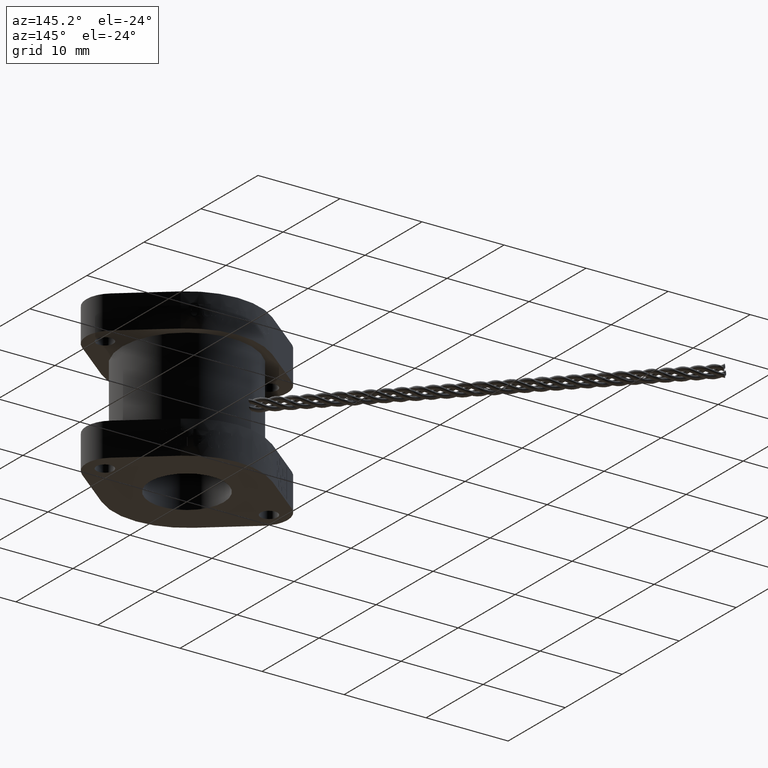
[diagram: clean part render]
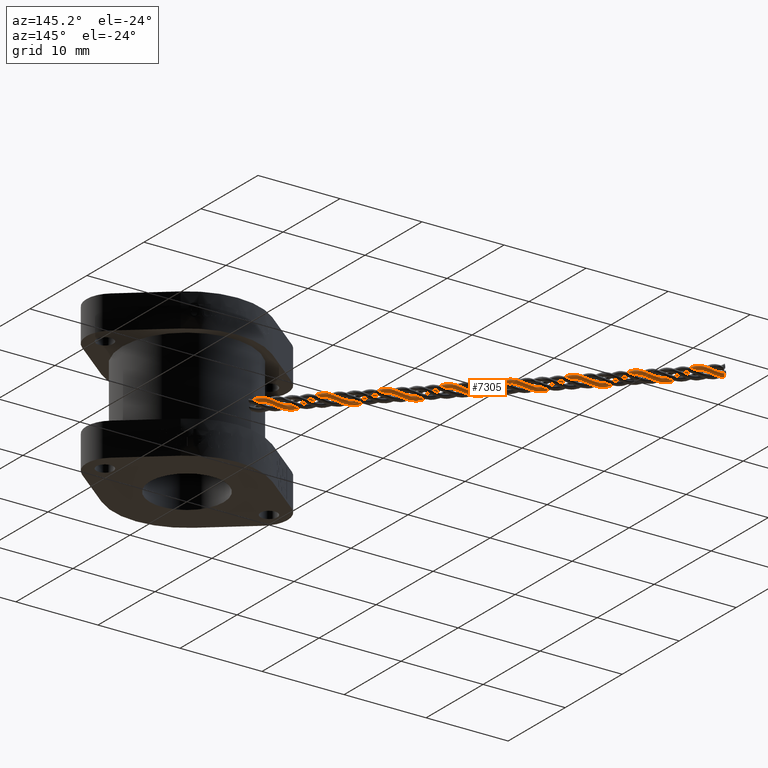
[diagram: same view with one face highlighted and labeled with its STEP entity id]
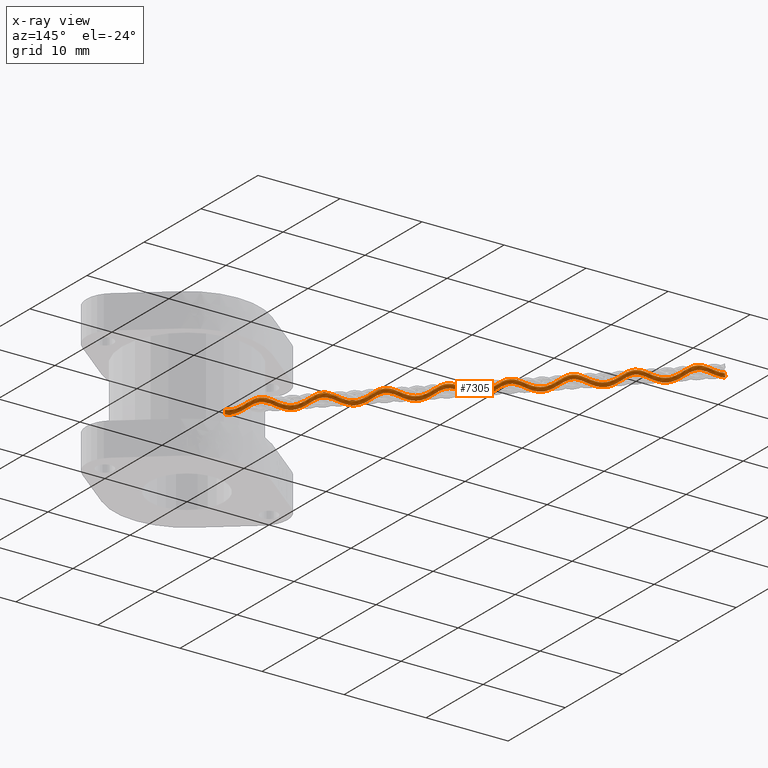
[diagram: x-ray of the same camera — body ghosted, the highlighted face saturated]
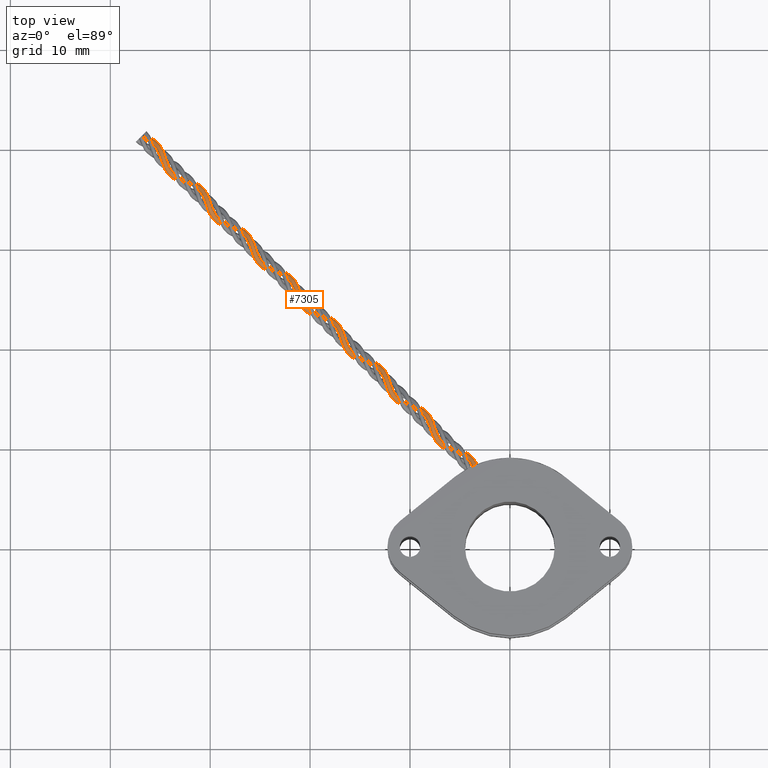
[diagram: same view with one face highlighted and labeled with its STEP entity id]
A machine part, auxiliary view. The second image highlights one B-rep face of the part: STEP entity #7305.
The next image is the same camera in x-ray: the body ghosted, the highlighted face saturated — about 0% of this face is hidden behind the body in this view.
A second angle (top view) of the same face is appended — the face is thin or edge-on in the first view.
In plain terms, the highlighted face is a freeform B-spline surface patch.
Its self-contained STEP definition (entity closure, byte-faithful):
#402=B_SPLINE_CURVE_WITH_KNOTS('',3,(#16653,#16654,#16655,#16656,#16657,
#16658,#16659,#16660,#16661,#16662,#16663,#16664,#16665,#16666,#16667,#16668,
#16669,#16670,#16671,#16672,#16673,#16674,#16675,#16676,#16677,#16678,#16679,
#16680,#16681,#16682,#16683,#16684,#16685,#16686,#16687,#16688,#16689,#16690,
#16691,#16692,#16693,#16694,#16695,#16696,#16697,#16698,#16699,#16700,#16701,
#16702,#16703,#16704,#16705,#16706,#16707,#16708,#16709,#16710,#16711,#16712,
#16713,#16714,#16715,#16716,#16717,#16718,#16719,#16720,#16721,#16722,#16723,
#16724,#16725,#16726,#16727,#16728,#16729,#16730,#16731,#16732,#16733,#16734,
#16735,#16736,#16737,#16738,#16739,#16740,#16741,#16742,#16743,#16744,#16745,
#16746,#16747,#16748,#16749),.UNSPECIFIED.,.F.,.F.,(4,3,3,3,3,3,3,3,3,3,
3,3,3,3,3,3,3,3,3,3,3,3,3,3,3,3,3,3,3,3,3,3,4),(0.,1.5707963267949,3.14159265358979,
4.71238898038469,6.28318530717959,7.85398163397448,9.42477796076938,10.9955742875643,
12.5663706143592,14.1371669411541,15.707963267949,17.2787595947439,18.8495559215388,
20.4203522483337,21.9911485751286,23.5619449019235,25.1327412287184,26.7035375555133,
28.2743338823081,29.845130209103,31.4159265358979,32.9867228626928,34.5575191894877,
36.1283155162826,37.6991118430775,39.2699081698724,40.8407044966673,42.4115008234622,
43.9822971502571,45.553093477052,47.1238898038469,48.6946861306418,50.2654824574367),
 .UNSPECIFIED.);
#563=B_SPLINE_SURFACE_WITH_KNOTS('',3,3,((#15880,#15881,#15882,#15883,#15884,
#15885,#15886,#15887,#15888,#15889,#15890,#15891,#15892,#15893,#15894,#15895,
#15896,#15897,#15898,#15899,#15900,#15901,#15902,#15903,#15904,#15905,#15906,
#15907,#15908,#15909,#15910,#15911,#15912,#15913,#15914,#15915,#15916,#15917,
#15918,#15919,#15920,#15921,#15922,#15923,#15924,#15925,#15926,#15927,#15928,
#15929,#15930,#15931,#15932,#15933,#15934,#15935,#15936,#15937,#15938,#15939,
#15940,#15941,#15942,#15943,#15944,#15945,#15946,#15947,#15948,#15949,#15950,
#15951,#15952,#15953,#15954,#15955,#15956),(#15957,#15958,#15959,#15960,
#15961,#15962,#15963,#15964,#15965,#15966,#15967,#15968,#15969,#15970,#15971,
#15972,#15973,#15974,#15975,#15976,#15977,#15978,#15979,#15980,#15981,#15982,
#15983,#15984,#15985,#15986,#15987,#15988,#15989,#15990,#15991,#15992,#15993,
#15994,#15995,#15996,#15997,#15998,#15999,#16000,#16001,#16002,#16003,#16004,
#16005,#16006,#16007,#16008,#16009,#16010,#16011,#16012,#16013,#16014,#16015,
#16016,#16017,#16018,#16019,#16020,#16021,#16022,#16023,#16024,#16025,#16026,
#16027,#16028,#16029,#16030,#16031,#16032,#16033),(#16034,#16035,#16036,
#16037,#16038,#16039,#16040,#16041,#16042,#16043,#16044,#16045,#16046,#16047,
#16048,#16049,#16050,#16051,#16052,#16053,#16054,#16055,#16056,#16057,#16058,
#16059,#16060,#16061,#16062,#16063,#16064,#16065,#16066,#16067,#16068,#16069,
#16070,#16071,#16072,#16073,#16074,#16075,#16076,#16077,#16078,#16079,#16080,
#16081,#16082,#16083,#16084,#16085,#16086,#16087,#16088,#16089,#16090,#16091,
#16092,#16093,#16094,#16095,#16096,#16097,#16098,#16099,#16100,#16101,#16102,
#16103,#16104,#16105,#16106,#16107,#16108,#16109,#16110),(#16111,#16112,
#16113,#16114,#16115,#16116,#16117,#16118,#16119,#16120,#16121,#16122,#16123,
#16124,#16125,#16126,#16127,#16128,#16129,#16130,#16131,#16132,#16133,#16134,
#16135,#16136,#16137,#16138,#16139,#16140,#16141,#16142,#16143,#16144,#16145,
#16146,#16147,#16148,#16149,#16150,#16151,#16152,#16153,#16154,#16155,#16156,
#16157,#16158,#16159,#16160,#16161,#16162,#16163,#16164,#16165,#16166,#16167,
#16168,#16169,#16170,#16171,#16172,#16173,#16174,#16175,#16176,#16177,#16178,
#16179,#16180,#16181,#16182,#16183,#16184,#16185,#16186,#16187),(#16188,
#16189,#16190,#16191,#16192,#16193,#16194,#16195,#16196,#16197,#16198,#16199,
#16200,#16201,#16202,#16203,#16204,#16205,#16206,#16207,#16208,#16209,#16210,
#16211,#16212,#16213,#16214,#16215,#16216,#16217,#16218,#16219,#16220,#16221,
#16222,#16223,#16224,#16225,#16226,#16227,#16228,#16229,#16230,#16231,#16232,
#16233,#16234,#16235,#16236,#16237,#16238,#16239,#16240,#16241,#16242,#16243,
#16244,#16245,#16246,#16247,#16248,#16249,#16250,#16251,#16252,#16253,#16254,
#16255,#16256,#16257,#16258,#16259,#16260,#16261,#16262,#16263,#16264),
(#16265,#16266,#16267,#16268,#16269,#16270,#16271,#16272,#16273,#16274,
#16275,#16276,#16277,#16278,#16279,#16280,#16281,#16282,#16283,#16284,#16285,
#16286,#16287,#16288,#16289,#16290,#16291,#16292,#16293,#16294,#16295,#16296,
#16297,#16298,#16299,#16300,#16301,#16302,#16303,#16304,#16305,#16306,#16307,
#16308,#16309,#16310,#16311,#16312,#16313,#16314,#16315,#16316,#16317,#16318,
#16319,#16320,#16321,#16322,#16323,#16324,#16325,#16326,#16327,#16328,#16329,
#16330,#16331,#16332,#16333,#16334,#16335,#16336,#16337,#16338,#16339,#16340,
#16341),(#16342,#16343,#16344,#16345,#16346,#16347,#16348,#16349,#16350,
#16351,#16352,#16353,#16354,#16355,#16356,#16357,#16358,#16359,#16360,#16361,
#16362,#16363,#16364,#16365,#16366,#16367,#16368,#16369,#16370,#16371,#16372,
#16373,#16374,#16375,#16376,#16377,#16378,#16379,#16380,#16381,#16382,#16383,
#16384,#16385,#16386,#16387,#16388,#16389,#16390,#16391,#16392,#16393,#16394,
#16395,#16396,#16397,#16398,#16399,#16400,#16401,#16402,#16403,#16404,#16405,
#16406,#16407,#16408,#16409,#16410,#16411,#16412,#16413,#16414,#16415,#16416,
#16417,#16418),(#16419,#16420,#16421,#16422,#16423,#16424,#16425,#16426,
#16427,#16428,#16429,#16430,#16431,#16432,#16433,#16434,#16435,#16436,#16437,
#16438,#16439,#16440,#16441,#16442,#16443,#16444,#16445,#16446,#16447,#16448,
#16449,#16450,#16451,#16452,#16453,#16454,#16455,#16456,#16457,#16458,#16459,
#16460,#16461,#16462,#16463,#16464,#16465,#16466,#16467,#16468,#16469,#16470,
#16471,#16472,#16473,#16474,#16475,#16476,#16477,#16478,#16479,#16480,#16481,
#16482,#16483,#16484,#16485,#16486,#16487,#16488,#16489,#16490,#16491,#16492,
#16493,#16494,#16495),(#16496,#16497,#16498,#16499,#16500,#16501,#16502,
#16503,#16504,#16505,#16506,#16507,#16508,#16509,#16510,#16511,#16512,#16513,
#16514,#16515,#16516,#16517,#16518,#16519,#16520,#16521,#16522,#16523,#16524,
#16525,#16526,#16527,#16528,#16529,#16530,#16531,#16532,#16533,#16534,#16535,
#16536,#16537,#16538,#16539,#16540,#16541,#16542,#16543,#16544,#16545,#16546,
#16547,#16548,#16549,#16550,#16551,#16552,#16553,#16554,#16555,#16556,#16557,
#16558,#16559,#16560,#16561,#16562,#16563,#16564,#16565,#16566,#16567,#16568,
#16569,#16570,#16571,#16572),(#16573,#16574,#16575,#16576,#16577,#16578,
#16579,#16580,#16581,#16582,#16583,#16584,#16585,#16586,#16587,#16588,#16589,
#16590,#16591,#16592,#16593,#16594,#16595,#16596,#16597,#16598,#16599,#16600,
#16601,#16602,#16603,#16604,#16605,#16606,#16607,#16608,#16609,#16610,#16611,
#16612,#16613,#16614,#16615,#16616,#16617,#16618,#16619,#16620,#16621,#16622,
#16623,#16624,#16625,#16626,#16627,#16628,#16629,#16630,#16631,#16632,#16633,
#16634,#16635,#16636,#16637,#16638,#16639,#16640,#16641,#16642,#16643,#16644,
#16645,#16646,#16647,#16648,#16649)),.UNSPECIFIED.,.T.,.F.,.F.,(4,1,1,1,
1,1,1,4),(4,1,1,1,1,1,1,1,1,1,1,1,1,1,1,1,1,1,1,1,1,1,1,1,1,1,1,1,1,1,1,
1,1,1,1,1,1,1,1,1,1,1,1,1,1,1,1,1,1,1,1,1,1,1,1,1,1,1,1,1,1,1,1,1,1,1,1,
1,1,1,1,1,1,1,4),(-3.14159265358982,-2.24399475256415,-1.34639685153849,
-0.448798950512816,0.448798950512854,1.34639685153852,2.24399475256419,
3.14159265358986),(0.,0.448798950512828,0.897597901025655,1.34639685153848,
1.79519580205131,2.24399475256414,2.69279370307697,3.14159265358979,3.59039160410262,
4.48798950512828,4.9367884556411,5.38558740615393,5.83438635666676,6.28318530717959,
6.73198425769241,7.18078320820524,7.62958215871807,8.0783811092309,8.52718005974372,
8.97597901025655,9.42477796076938,9.87357691128221,10.322375861795,10.7711748123079,
11.2199737628207,11.6687727133335,12.1175716638463,12.5663706143592,13.4639685153848,
14.3615664164105,15.2591643174361,16.1567622184618,17.0543601194874,17.9519580205131,
18.8495559215388,19.7471538225644,20.6447517235901,21.5423496246157,22.4399475256414,
23.337545426667,24.2351433276927,25.1327412287183,26.030339129744,26.9279370307697,
27.8255349317953,28.723132832821,29.6207307338466,30.5183286348723,31.4159265358979,
32.3135244369236,33.2111223379492,34.1087202389749,35.0063181400006,35.9039160410262,
36.8015139420519,37.6991118430775,38.5967097441032,39.4943076451288,40.3919055461545,
41.2895034471801,42.1871013482058,43.0846992492314,43.9822971502571,44.8798950512828,
45.7774929523084,46.2262919028212,46.6750908533341,47.1238898038469,47.5726887543597,
48.0214877048726,48.4702866553854,48.9190856058982,49.367884556411,49.8166835069239,
50.2654824574367),.UNSPECIFIED.);
#1116=FACE_OUTER_BOUND('',#1540,.T.);
#1540=EDGE_LOOP('',(#6508,#6509,#6510,#6511));
#1696=CIRCLE('',#7721,0.01);
#1697=CIRCLE('',#7722,0.01);
#3464=VERTEX_POINT('',#16650);
#3465=VERTEX_POINT('',#16652);
#4480=EDGE_CURVE('',#3464,#3464,#1696,.T.);
#4481=EDGE_CURVE('',#3464,#3465,#402,.T.);
#4482=EDGE_CURVE('',#3465,#3465,#1697,.T.);
#6508=ORIENTED_EDGE('',*,*,#4480,.T.);
#6509=ORIENTED_EDGE('',*,*,#4481,.T.);
#6510=ORIENTED_EDGE('',*,*,#4482,.F.);
#6511=ORIENTED_EDGE('',*,*,#4481,.F.);
#7305=ADVANCED_FACE('',(#1116),#563,.T.);
#7721=AXIS2_PLACEMENT_3D('',#16651,#9000,#9001);
#7722=AXIS2_PLACEMENT_3D('',#16750,#9002,#9003);
#9000=DIRECTION('center_axis',(-1.,0.,0.));
#9001=DIRECTION('ref_axis',(0.,-1.,0.));
#9002=DIRECTION('center_axis',(-1.,0.,0.));
#9003=DIRECTION('ref_axis',(0.,-1.,-1.95943487863577E-15));
#15880=CARTESIAN_POINT('Ctrl Pts',(0.,0.0100079662046346,-0.0199997819389128));
#15881=CARTESIAN_POINT('Ctrl Pts',(-0.00595238095238097,0.00701616777863002,
-0.0214969855232307));
#15882=CARTESIAN_POINT('Ctrl Pts',(-0.0178571428571428,0.000351245651654204,
-0.0231265864990559));
#15883=CARTESIAN_POINT('Ctrl Pts',(-0.0357142857142857,-0.00971784333302658,
-0.0209874285897488));
#15884=CARTESIAN_POINT('Ctrl Pts',(-0.0535714285714284,-0.0178623874371704,
-0.0146945367800763));
#15885=CARTESIAN_POINT('Ctrl Pts',(-0.0714285714285714,-0.0224670515713277,
-0.0054855322081723));
#15886=CARTESIAN_POINT('Ctrl Pts',(-0.0892857142857141,-0.0226268244109085,
0.00479853325339819));
#15887=CARTESIAN_POINT('Ctrl Pts',(-0.107142857142857,-0.0182943474254477,
0.0141557196099657));
#15888=CARTESIAN_POINT('Ctrl Pts',(-0.125,-0.0103609332895834,0.0206603855227125));
#15889=CARTESIAN_POINT('Ctrl Pts',(-0.148809523809523,0.00301298646147224,
0.0240072023003211));
#15890=CARTESIAN_POINT('Ctrl Pts',(-0.172619047619048,0.0163575643073383,
0.0178283108730405));
#15891=CARTESIAN_POINT('Ctrl Pts',(-0.196428571428571,0.0224574234641664,
0.00546493190294592));
#15892=CARTESIAN_POINT('Ctrl Pts',(-0.214285714285714,0.0226295403413182,
-0.00479277443985769));
#15893=CARTESIAN_POINT('Ctrl Pts',(-0.232142857142857,0.0182970024818217,
-0.0141499127163094));
#15894=CARTESIAN_POINT('Ctrl Pts',(-0.25,0.0103513945983153,-0.0206810566251258));
#15895=CARTESIAN_POINT('Ctrl Pts',(-0.267857142857142,0.00035032776978281,
-0.0231273381844041));
#15896=CARTESIAN_POINT('Ctrl Pts',(-0.285714285714285,-0.00971760110715863,
-0.0209875563548638));
#15897=CARTESIAN_POINT('Ctrl Pts',(-0.303571428571428,-0.0178620642123345,
-0.0146935066373034));
#15898=CARTESIAN_POINT('Ctrl Pts',(-0.321428571428571,-0.0224681172925728,
-0.00548804692337613));
#15899=CARTESIAN_POINT('Ctrl Pts',(-0.339285714285713,-0.0226244191088254,
0.00480394033226111));
#15900=CARTESIAN_POINT('Ctrl Pts',(-0.357142857142857,-0.0182994291032359,
0.0141444128413194));
#15901=CARTESIAN_POINT('Ctrl Pts',(-0.374999999999999,-0.0103503129977519,
0.0206839491095857));
#15902=CARTESIAN_POINT('Ctrl Pts',(-0.392857142857142,-0.000350670033450758,
0.023125433424238));
#15903=CARTESIAN_POINT('Ctrl Pts',(-0.410714285714285,0.0097173955451107,
0.0209895393693195));
#15904=CARTESIAN_POINT('Ctrl Pts',(-0.428571428571427,0.0178629325866486,
0.0146903355900044));
#15905=CARTESIAN_POINT('Ctrl Pts',(-0.446428571428571,0.0224660998181642,
0.00549418140482647));
#15906=CARTESIAN_POINT('Ctrl Pts',(-0.464285714285714,0.0226287029820019,
-0.00481645101632701));
#15907=CARTESIAN_POINT('Ctrl Pts',(-0.482142857142856,0.0182905032348076,
-0.0141185352239661));
#15908=CARTESIAN_POINT('Ctrl Pts',(-0.50595238095238,0.00772469822493376,
-0.0229379658207752));
#15909=CARTESIAN_POINT('Ctrl Pts',(-0.535714285714284,-0.0107320151701566,
-0.023239019206559));
#15910=CARTESIAN_POINT('Ctrl Pts',(-0.571428571428571,-0.0248797194434046,
-0.00606745936001701));
#15911=CARTESIAN_POINT('Ctrl Pts',(-0.607142857142856,-0.0202512242847808,
0.0156496748523996));
#15912=CARTESIAN_POINT('Ctrl Pts',(-0.642857142857142,-0.000386430303524261,
0.0256044756832777));
#15913=CARTESIAN_POINT('Ctrl Pts',(-0.678571428571427,0.0197644044271146,
0.0162630698745084));
#15914=CARTESIAN_POINT('Ctrl Pts',(-0.714285714285713,0.0250435795994568,
-0.00531828622470312));
#15915=CARTESIAN_POINT('Ctrl Pts',(-0.749999999999999,0.011455283854559,
-0.0228930396839129));
#15916=CARTESIAN_POINT('Ctrl Pts',(-0.785714285714284,-0.0107558450441796,
-0.0232310271818958));
#15917=CARTESIAN_POINT('Ctrl Pts',(-0.821428571428571,-0.0248690440133039,
-0.00607440881335608));
#15918=CARTESIAN_POINT('Ctrl Pts',(-0.857142857142854,-0.0202548002976255,
0.0156558289779418));
#15919=CARTESIAN_POINT('Ctrl Pts',(-0.892857142857141,-0.000388206390912872,
0.0255970445483239));
#15920=CARTESIAN_POINT('Ctrl Pts',(-0.928571428571428,0.0197699919134285,
0.0162633619523786));
#15921=CARTESIAN_POINT('Ctrl Pts',(-0.964285714285711,0.0250426993974295,
-0.00531759172995459));
#15922=CARTESIAN_POINT('Ctrl Pts',(-0.999999999999999,0.0114542235599969,
-0.0228929333461262));
#15923=CARTESIAN_POINT('Ctrl Pts',(-1.03571428571428,-0.01075258111328,
-0.0232321772561532));
#15924=CARTESIAN_POINT('Ctrl Pts',(-1.07142857142857,-0.024875465738405,
-0.00607147290377555));
#15925=CARTESIAN_POINT('Ctrl Pts',(-1.10714285714286,-0.0202542697555624,
0.0156490442771425));
#15926=CARTESIAN_POINT('Ctrl Pts',(-1.14285714285714,-0.000386230308552538,
0.025598418803543));
#15927=CARTESIAN_POINT('Ctrl Pts',(-1.17857142857143,0.0197672353487379,
0.0162649652934617));
#15928=CARTESIAN_POINT('Ctrl Pts',(-1.21428571428571,0.02504672761339,-0.00532269338935518));
#15929=CARTESIAN_POINT('Ctrl Pts',(-1.25,0.0114582378550967,-0.0228867697701744));
#15930=CARTESIAN_POINT('Ctrl Pts',(-1.28571428571428,-0.0107581596290446,
-0.0232327791615376));
#15931=CARTESIAN_POINT('Ctrl Pts',(-1.32142857142857,-0.0248678264938739,
-0.00607360556685631));
#15932=CARTESIAN_POINT('Ctrl Pts',(-1.35714285714285,-0.020255366745573,
0.0156553732902706));
#15933=CARTESIAN_POINT('Ctrl Pts',(-1.39285714285714,-0.000388033614353442,
0.0255973887923496));
#15934=CARTESIAN_POINT('Ctrl Pts',(-1.42857142857143,0.0197701317005052,
0.0162629638405145));
#15935=CARTESIAN_POINT('Ctrl Pts',(-1.46428571428571,0.0250421810861578,
-0.00531695042334568));
#15936=CARTESIAN_POINT('Ctrl Pts',(-1.5,0.0114553604166008,-0.0228941225704577));
#15937=CARTESIAN_POINT('Ctrl Pts',(-1.53571428571428,-0.0107548055699971,
-0.0232298753982172));
#15938=CARTESIAN_POINT('Ctrl Pts',(-1.57142857142857,-0.0248718632928348,
-0.00607598629823931));
#15939=CARTESIAN_POINT('Ctrl Pts',(-1.60714285714285,-0.0202465171784156,
0.0156564966703843));
#15940=CARTESIAN_POINT('Ctrl Pts',(-1.64285714285714,-0.00039488899147908,
0.0256033063708326));
#15941=CARTESIAN_POINT('Ctrl Pts',(-1.67857142857143,0.0197757585593864,
0.0162591882786877));
#15942=CARTESIAN_POINT('Ctrl Pts',(-1.71428571428571,0.0250350844762126,
-0.00531413576284361));
#15943=CARTESIAN_POINT('Ctrl Pts',(-1.75,0.0114673464173481,-0.022897270048007));
#15944=CARTESIAN_POINT('Ctrl Pts',(-1.78571428571428,-0.0107779080179367,
-0.0232247516417718));
#15945=CARTESIAN_POINT('Ctrl Pts',(-1.81547619047619,-0.0224800036931988,
-0.00894342484138891));
#15946=CARTESIAN_POINT('Ctrl Pts',(-1.83928571428571,-0.0226020045200488,
0.00481204431736186));
#15947=CARTESIAN_POINT('Ctrl Pts',(-1.85714285714285,-0.0183102480391863,
0.0141406500226531));
#15948=CARTESIAN_POINT('Ctrl Pts',(-1.875,-0.0103450133563918,0.0206855068156347));
#15949=CARTESIAN_POINT('Ctrl Pts',(-1.89285714285714,-0.000353396737644921,
0.0231252120729384));
#15950=CARTESIAN_POINT('Ctrl Pts',(-1.91071428571428,0.00971907614232114,
0.0209885484851943));
#15951=CARTESIAN_POINT('Ctrl Pts',(-1.92857142857142,0.0178613576277086,
0.0146930932575636));
#15952=CARTESIAN_POINT('Ctrl Pts',(-1.94642857142857,0.0224684506781654,
0.00548811337024136));
#15953=CARTESIAN_POINT('Ctrl Pts',(-1.96428571428571,0.0226242692149971,
-0.00480369001247953));
#15954=CARTESIAN_POINT('Ctrl Pts',(-1.98214285714285,0.0182994507545001,
-0.0141450690238575));
#15955=CARTESIAN_POINT('Ctrl Pts',(-1.99404761904762,0.0129997646306392,
-0.0185025783545949));
#15956=CARTESIAN_POINT('Ctrl Pts',(-2.,0.0100079662046346,-0.0199997819389128));
#15957=CARTESIAN_POINT('Ctrl Pts',(0.,0.0100069187928176,-0.0229822192845548));
#15958=CARTESIAN_POINT('Ctrl Pts',(-0.00595238095238097,0.00656882983362436,
-0.0244794304996441));
#15959=CARTESIAN_POINT('Ctrl Pts',(-0.0178571428571428,-0.000987898676966499,
-0.0259051367327596));
#15960=CARTESIAN_POINT('Ctrl Pts',(-0.0357142857142856,-0.0121300064291279,
-0.0229096816716485));
#15961=CARTESIAN_POINT('Ctrl Pts',(-0.0535714285714285,-0.0208698512793186,
-0.0153799834168826));
#15962=CARTESIAN_POINT('Ctrl Pts',(-0.0714285714285713,-0.0254736475731294,
-0.00479792093284841));
#15963=CARTESIAN_POINT('Ctrl Pts',(-0.0892857142857141,-0.0250383093101434,
0.00672198023584761));
#15964=CARTESIAN_POINT('Ctrl Pts',(-0.107142857142857,-0.0196304036805504,
0.0169361911734282));
#15965=CARTESIAN_POINT('Ctrl Pts',(-0.125,-0.0103625811151754,0.0237427025628125));
#15966=CARTESIAN_POINT('Ctrl Pts',(-0.148809523809523,0.0048060817141844,
0.026689935509605));
#15967=CARTESIAN_POINT('Ctrl Pts',(-0.172619047619048,0.0193726320805348,
0.0189773509252035));
#15968=CARTESIAN_POINT('Ctrl Pts',(-0.196428571428571,0.025461660404271,
0.00477542798661673));
#15969=CARTESIAN_POINT('Ctrl Pts',(-0.214285714285714,0.0250416780060085,
-0.00671569136492635));
#15970=CARTESIAN_POINT('Ctrl Pts',(-0.232142857142857,0.0196337395233958,
-0.0169298523753658));
#15971=CARTESIAN_POINT('Ctrl Pts',(-0.25,0.0103506428303675,-0.0237652685677675));
#15972=CARTESIAN_POINT('Ctrl Pts',(-0.267857142857142,-0.000989048890971891,
-0.025905990285485));
#15973=CARTESIAN_POINT('Ctrl Pts',(-0.285714285714285,-0.0121297047597865,
-0.0229098069990507));
#15974=CARTESIAN_POINT('Ctrl Pts',(-0.303571428571428,-0.0208694449446518,
-0.0153788649808176));
#15975=CARTESIAN_POINT('Ctrl Pts',(-0.321428571428571,-0.02547498469256,
-0.00480066466372177));
#15976=CARTESIAN_POINT('Ctrl Pts',(-0.339285714285713,-0.0250352923136455,
0.00672788523728939));
#15977=CARTESIAN_POINT('Ctrl Pts',(-0.357142857142856,-0.019636777679835,
0.0169238405061727));
#15978=CARTESIAN_POINT('Ctrl Pts',(-0.374999999999999,-0.0103492627623446,
0.0237684419068635));
#15979=CARTESIAN_POINT('Ctrl Pts',(-0.392857142857142,0.000988554077763417,
0.0259038785539565));
#15980=CARTESIAN_POINT('Ctrl Pts',(-0.410714285714285,0.0121295911964226,
0.0229120389335533));
#15981=CARTESIAN_POINT('Ctrl Pts',(-0.428571428571427,0.0208702303768644,
0.0153752637606564));
#15982=CARTESIAN_POINT('Ctrl Pts',(-0.446428571428571,0.0254730875169502,
0.00480765140898422));
#15983=CARTESIAN_POINT('Ctrl Pts',(-0.464285714285713,0.0250393507984246,
-0.00674214430547632));
#15984=CARTESIAN_POINT('Ctrl Pts',(-0.482142857142856,0.0196283091689551,
-0.0168943439374183));
#15985=CARTESIAN_POINT('Ctrl Pts',(-0.50595238095238,0.00727597916661092,
-0.026134473625881));
#15986=CARTESIAN_POINT('Ctrl Pts',(-0.535714285714284,-0.0133995678001343,
-0.0253691136981555));
#15987=CARTESIAN_POINT('Ctrl Pts',(-0.571428571428571,-0.0282087636099931,
-0.00530516686605164));
#15988=CARTESIAN_POINT('Ctrl Pts',(-0.607142857142855,-0.0217313786356962,
0.0187251541407118));
#15989=CARTESIAN_POINT('Ctrl Pts',(-0.642857142857142,0.00109650761064376,
0.0286806746639586));
#15990=CARTESIAN_POINT('Ctrl Pts',(-0.678571428571427,0.0230923975607241,
0.0170219443291811));
#15991=CARTESIAN_POINT('Ctrl Pts',(-0.714285714285712,0.0277121936603009,
-0.00744802147074499));
#15992=CARTESIAN_POINT('Ctrl Pts',(-0.749999999999999,0.0114540676265195,
-0.02630694064578));
#15993=CARTESIAN_POINT('Ctrl Pts',(-0.785714285714283,-0.0134257291029109,
-0.0253587861551705));
#15994=CARTESIAN_POINT('Ctrl Pts',(-0.82142857142857,-0.0281972173110532,
-0.00531356384496298));
#15995=CARTESIAN_POINT('Ctrl Pts',(-0.857142857142855,-0.021735048990128,
0.0187322527804145));
#15996=CARTESIAN_POINT('Ctrl Pts',(-0.89285714285714,0.00109414460728907,
0.0286724512003682));
#15997=CARTESIAN_POINT('Ctrl Pts',(-0.928571428571428,0.0230986272386759,
0.0170219665686977));
#15998=CARTESIAN_POINT('Ctrl Pts',(-0.964285714285711,0.0277112562540525,
-0.00744719394427848));
#15999=CARTESIAN_POINT('Ctrl Pts',(-0.999999999999999,0.0114528851711898,
-0.0263067715021223));
#16000=CARTESIAN_POINT('Ctrl Pts',(-1.03571428571428,-0.0134221433743391,
-0.0253602344097991));
#16001=CARTESIAN_POINT('Ctrl Pts',(-1.07142857142857,-0.0282042321402726,
-0.00530996141736411));
#16002=CARTESIAN_POINT('Ctrl Pts',(-1.10714285714285,-0.0217348374560079,
0.0187246695465067));
#16003=CARTESIAN_POINT('Ctrl Pts',(-1.14285714285714,0.00109643548465879,
0.0286738768172901));
#16004=CARTESIAN_POINT('Ctrl Pts',(-1.17857142857142,0.0230956255183675,
0.0170238999546004));
#16005=CARTESIAN_POINT('Ctrl Pts',(-1.21428571428571,0.027715492641,-0.00745309249401759));
#16006=CARTESIAN_POINT('Ctrl Pts',(-1.25,0.0114577026257423,-0.0263001258602687));
#16007=CARTESIAN_POINT('Ctrl Pts',(-1.28571428571428,-0.0134284096496531,
-0.0253606084511216));
#16008=CARTESIAN_POINT('Ctrl Pts',(-1.32142857142857,-0.0281958133696541,
-0.00531273717123143));
#16009=CARTESIAN_POINT('Ctrl Pts',(-1.35714285714286,-0.0217357069166534,
0.0187317773867877));
#16010=CARTESIAN_POINT('Ctrl Pts',(-1.39285714285714,0.00109435703926439,
0.0286728236476867));
#16011=CARTESIAN_POINT('Ctrl Pts',(-1.42857142857143,0.0230987603751651,
0.0170215181046736));
#16012=CARTESIAN_POINT('Ctrl Pts',(-1.46428571428571,0.0277107148104798,
-0.00744645622014853));
#16013=CARTESIAN_POINT('Ctrl Pts',(-1.5,0.0114540852077584,-0.0263081486617556));
#16014=CARTESIAN_POINT('Ctrl Pts',(-1.53571428571428,-0.0134244928393194,
-0.02535756794275));
#16015=CARTESIAN_POINT('Ctrl Pts',(-1.57142857142857,-0.0282004726964494,
-0.00531514553768271));
#16016=CARTESIAN_POINT('Ctrl Pts',(-1.60714285714285,-0.0217257411926252,
0.01873244913762));
#16017=CARTESIAN_POINT('Ctrl Pts',(-1.64285714285714,0.00108707236871218,
0.0286799224331237));
#16018=CARTESIAN_POINT('Ctrl Pts',(-1.67857142857142,0.0231048161031501,
0.0170169173498789));
#16019=CARTESIAN_POINT('Ctrl Pts',(-1.71428571428571,0.0277029433509831,
-0.00744285419374799));
#16020=CARTESIAN_POINT('Ctrl Pts',(-1.75,0.0114673213540758,-0.0263124173792183));
#16021=CARTESIAN_POINT('Ctrl Pts',(-1.78571428571428,-0.013450070225486,
-0.0253504050084091));
#16022=CARTESIAN_POINT('Ctrl Pts',(-1.81547619047619,-0.0256945939086337,
-0.00866743152110005));
#16023=CARTESIAN_POINT('Ctrl Pts',(-1.83928571428571,-0.0250097245187075,
0.00673562735767767));
#16024=CARTESIAN_POINT('Ctrl Pts',(-1.85714285714285,-0.0196491089386274,
0.0169202697280586));
#16025=CARTESIAN_POINT('Ctrl Pts',(-1.875,-0.0103432395828667,0.0237698705093699));
#16026=CARTESIAN_POINT('Ctrl Pts',(-1.89285714285714,0.000985490380116843,
0.0259037946074387));
#16027=CARTESIAN_POINT('Ctrl Pts',(-1.91071428571428,0.0121314109657663,
0.0229108254100176));
#16028=CARTESIAN_POINT('Ctrl Pts',(-1.92857142857142,0.0208686361926632,
0.0153784539020468));
#16029=CARTESIAN_POINT('Ctrl Pts',(-1.94642857142857,0.0254753484317199,
0.00480069904096915));
#16030=CARTESIAN_POINT('Ctrl Pts',(-1.96428571428571,0.0250351671960187,
-0.0067275534174582));
#16031=CARTESIAN_POINT('Ctrl Pts',(-1.98214285714285,0.0196367048631139,
-0.0169246626520717));
#16032=CARTESIAN_POINT('Ctrl Pts',(-1.99404761904762,0.0134450077520109,
-0.0214850080694654));
#16033=CARTESIAN_POINT('Ctrl Pts',(-2.,0.0100069187928177,-0.0229822192845548));
#16034=CARTESIAN_POINT('Ctrl Pts',(0.,0.00713333571292877,-0.0289457165638516));
#16035=CARTESIAN_POINT('Ctrl Pts',(-0.00595238095238095,0.00280271594007317,
-0.0300133649863751));
#16036=CARTESIAN_POINT('Ctrl Pts',(-0.0178571428571428,-0.00634117866335319,
-0.0301725213177129));
#16037=CARTESIAN_POINT('Ctrl Pts',(-0.0357142857142857,-0.0188047656182536,
-0.0244315670155643));
#16038=CARTESIAN_POINT('Ctrl Pts',(-0.0535714285714285,-0.0275443471966667,
-0.0138552197197472));
#16039=CARTESIAN_POINT('Ctrl Pts',(-0.0714285714285713,-0.0308244407022151,
-0.000528064335244862));
#16040=CARTESIAN_POINT('Ctrl Pts',(-0.0892857142857142,-0.0280091044167175,
0.0128903929135291));
#16041=CARTESIAN_POINT('Ctrl Pts',(-0.107142857142857,-0.0196253323489399,
0.0237831368522704));
#16042=CARTESIAN_POINT('Ctrl Pts',(-0.125,-0.00739825836673109,0.0299085321177734));
#16043=CARTESIAN_POINT('Ctrl Pts',(-0.148809523809523,0.0109750040330238,
0.0303287477363195));
#16044=CARTESIAN_POINT('Ctrl Pts',(-0.172619047619048,0.02650861812522,
0.0183723766597048));
#16045=CARTESIAN_POINT('Ctrl Pts',(-0.196428571428571,0.0308059251234437,
0.000504060299569925));
#16046=CARTESIAN_POINT('Ctrl Pts',(-0.214285714285714,0.0280142809933157,
-0.0128836757986899));
#16047=CARTESIAN_POINT('Ctrl Pts',(-0.232142857142857,0.0196305493168738,
-0.0237763841438562));
#16048=CARTESIAN_POINT('Ctrl Pts',(-0.25,0.00737968585100992,-0.0299325874405304));
#16049=CARTESIAN_POINT('Ctrl Pts',(-0.267857142857142,-0.00634289747388755,
-0.0301734097304347));
#16050=CARTESIAN_POINT('Ctrl Pts',(-0.285714285714285,-0.0188043395863653,
-0.0244317181249203));
#16051=CARTESIAN_POINT('Ctrl Pts',(-0.303571428571428,-0.027543690679125,
-0.0138540169018524));
#16052=CARTESIAN_POINT('Ctrl Pts',(-0.321428571428571,-0.0308265414301572,
-0.000530999806894717));
#16053=CARTESIAN_POINT('Ctrl Pts',(-0.339285714285714,-0.0280043827724696,
0.0128967042461681));
#16054=CARTESIAN_POINT('Ctrl Pts',(-0.357142857142857,-0.0196353005579504,
0.0237699390002014));
#16055=CARTESIAN_POINT('Ctrl Pts',(-0.374999999999999,-0.00737743994726632,
0.0299360341156082));
#16056=CARTESIAN_POINT('Ctrl Pts',(-0.392857142857142,0.00634189920205334,
0.0301710315824434));
#16057=CARTESIAN_POINT('Ctrl Pts',(-0.410714285714285,0.0188046488500844,
0.0244343586638733));
#16058=CARTESIAN_POINT('Ctrl Pts',(-0.428571428571428,0.0275438972699206,
0.0138496362276561));
#16059=CARTESIAN_POINT('Ctrl Pts',(-0.446428571428571,0.0308257031365538,
0.000539573256569101));
#16060=CARTESIAN_POINT('Ctrl Pts',(-0.464285714285713,0.0280063117320464,
-0.0129142391533128));
#16061=CARTESIAN_POINT('Ctrl Pts',(-0.482142857142857,0.0196312216498811,
-0.0237336539270653));
#16062=CARTESIAN_POINT('Ctrl Pts',(-0.505952380952379,0.00330105138369535,
-0.0320950796901205));
#16063=CARTESIAN_POINT('Ctrl Pts',(-0.535714285714286,-0.0207852078153056,
-0.0270607380533819));
#16064=CARTESIAN_POINT('Ctrl Pts',(-0.571428571428571,-0.0341325087365548,
-0.000575514008019998));
#16065=CARTESIAN_POINT('Ctrl Pts',(-0.607142857142856,-0.0217304465911104,
0.0263008251563233));
#16066=CARTESIAN_POINT('Ctrl Pts',(-0.642857142857143,0.007023905030625,
0.0334049123958288));
#16067=CARTESIAN_POINT('Ctrl Pts',(-0.678571428571427,0.0304786377334945,
0.0153354386845784));
#16068=CARTESIAN_POINT('Ctrl Pts',(-0.714285714285713,0.0309985940364894,
-0.0142765439740854));
#16069=CARTESIAN_POINT('Ctrl Pts',(-0.75,0.00816476419238098,-0.0331331500714512));
#16070=CARTESIAN_POINT('Ctrl Pts',(-0.785714285714284,-0.0208137553675175,
-0.0270434989082401));
#16071=CARTESIAN_POINT('Ctrl Pts',(-0.821428571428571,-0.0341206162651704,
-0.000587632281246516));
#16072=CARTESIAN_POINT('Ctrl Pts',(-0.857142857142856,-0.0217334090531529,
0.0263098894087349));
#16073=CARTESIAN_POINT('Ctrl Pts',(-0.892857142857141,0.00701963676731363,
0.0333956898318423));
#16074=CARTESIAN_POINT('Ctrl Pts',(-0.928571428571429,0.030485865045884,
0.015334299095662));
#16075=CARTESIAN_POINT('Ctrl Pts',(-0.964285714285711,0.0309976736250074,
-0.014275393938679));
#16076=CARTESIAN_POINT('Ctrl Pts',(-1.,0.0081634019274656,-0.0331327436291918));
#16077=CARTESIAN_POINT('Ctrl Pts',(-1.03571428571428,-0.020809825096241,
-0.0270458395979039));
#16078=CARTESIAN_POINT('Ctrl Pts',(-1.07142857142857,-0.0341281519603622,
-0.000582153070169242));
#16079=CARTESIAN_POINT('Ctrl Pts',(-1.10714285714286,-0.0217346108329476,
0.0263010412327047));
#16080=CARTESIAN_POINT('Ctrl Pts',(-1.14285714285714,0.00702260349112168,
0.0333969161696102));
#16081=CARTESIAN_POINT('Ctrl Pts',(-1.17857142857143,0.0304826954877991,
0.015337114014874));
#16082=CARTESIAN_POINT('Ctrl Pts',(-1.21428571428571,0.031001552717222,
-0.0142830543414333));
#16083=CARTESIAN_POINT('Ctrl Pts',(-1.25,0.00817027751638365,-0.0331259283274599));
#16084=CARTESIAN_POINT('Ctrl Pts',(-1.28571428571428,-0.020817229896956,
-0.0270451039615374));
#16085=CARTESIAN_POINT('Ctrl Pts',(-1.32142857142857,-0.0341188197073074,
-0.000586940569734388));
#16086=CARTESIAN_POINT('Ctrl Pts',(-1.35714285714285,-0.0217342679111908,
0.0263094641972197));
#16087=CARTESIAN_POINT('Ctrl Pts',(-1.39285714285714,0.00701995599797908,
0.0333960789626544));
#16088=CARTESIAN_POINT('Ctrl Pts',(-1.42857142857143,0.0304859345757057,
0.0153337586410192));
#16089=CARTESIAN_POINT('Ctrl Pts',(-1.46428571428571,0.0309971829337179,
-0.0142744452848963));
#16090=CARTESIAN_POINT('Ctrl Pts',(-1.5,0.00816453885738272,-0.0331345494582008));
#16091=CARTESIAN_POINT('Ctrl Pts',(-1.53571428571428,-0.020812056765048,
-0.0270423392781759));
#16092=CARTESIAN_POINT('Ctrl Pts',(-1.57142857142857,-0.0341247557946166,
-0.000588798541477392));
#16093=CARTESIAN_POINT('Ctrl Pts',(-1.60714285714285,-0.0217224862981284,
0.0263081335421781));
#16094=CARTESIAN_POINT('Ctrl Pts',(-1.64285714285714,0.00701293934915327,
0.0334059919595432));
#16095=CARTESIAN_POINT('Ctrl Pts',(-1.67857142857143,0.0304920613018927,
0.0153270733690485));
#16096=CARTESIAN_POINT('Ctrl Pts',(-1.71428571428571,0.0309888109548878,
-0.014268606765776));
#16097=CARTESIAN_POINT('Ctrl Pts',(-1.75,0.00817921015005489,-0.033142272663891));
#16098=CARTESIAN_POINT('Ctrl Pts',(-1.78571428571429,-0.0208406484588477,
-0.0270287060142994));
#16099=CARTESIAN_POINT('Ctrl Pts',(-1.81547619047619,-0.0318576058196748,
-0.00502051188115959));
#16100=CARTESIAN_POINT('Ctrl Pts',(-1.83928571428571,-0.0279728625377922,
0.0129006895808739));
#16101=CARTESIAN_POINT('Ctrl Pts',(-1.85714285714285,-0.0196504684482861,
0.0237682071286716));
#16102=CARTESIAN_POINT('Ctrl Pts',(-1.875,-0.00737009524070427,0.0299365080320725));
#16103=CARTESIAN_POINT('Ctrl Pts',(-1.89285714285714,0.00633829403043779,
0.0301715477580444));
#16104=CARTESIAN_POINT('Ctrl Pts',(-1.91071428571428,0.0188065333022151,
0.0244325635327382));
#16105=CARTESIAN_POINT('Ctrl Pts',(-1.92857142857142,0.0275426790205114,
0.0138537149485227));
#16106=CARTESIAN_POINT('Ctrl Pts',(-1.94642857142857,0.0308269371398591,
0.000530928069782864));
#16107=CARTESIAN_POINT('Ctrl Pts',(-1.96428571428571,0.0280043808322634,
-0.0128962064363419));
#16108=CARTESIAN_POINT('Ctrl Pts',(-1.98214285714286,0.019634888122253,
-0.0237710571121658));
#16109=CARTESIAN_POINT('Ctrl Pts',(-1.99404761904762,0.0114639554857844,
-0.0278780681413281));
#16110=CARTESIAN_POINT('Ctrl Pts',(-2.,0.00713333571292882,-0.0289457165638516));
#16111=CARTESIAN_POINT('Ctrl Pts',(0.,-0.0025471289645805,-0.0311671429706906));
#16112=CARTESIAN_POINT('Ctrl Pts',(-0.00595238095238096,-0.00720896491769923,
-0.0307858758196779));
#16113=CARTESIAN_POINT('Ctrl Pts',(-0.0178571428571429,-0.0163589247893796,
-0.0278986904244436));
#16114=CARTESIAN_POINT('Ctrl Pts',(-0.0357142857142857,-0.0268422953658237,
-0.0180363276899097));
#16115=CARTESIAN_POINT('Ctrl Pts',(-0.0535714285714286,-0.0320123438927719,
-0.00460547948242019));
#16116=CARTESIAN_POINT('Ctrl Pts',(-0.0714285714285715,-0.0308351244918909,
0.00974300614177554));
#16117=CARTESIAN_POINT('Ctrl Pts',(-0.0892857142857143,-0.0235649815296656,
0.0221516656447705));
#16118=CARTESIAN_POINT('Ctrl Pts',(-0.107142857142857,-0.0115976237670206,
0.0301933081527388));
#16119=CARTESIAN_POINT('Ctrl Pts',(-0.125,0.00260464591142155,0.0322127095011589));
#16120=CARTESIAN_POINT('Ctrl Pts',(-0.148809523809524,0.0210184268873277,
0.0265104584089887));
#16121=CARTESIAN_POINT('Ctrl Pts',(-0.172619047619048,0.0324874528650303,
0.00944284552803662));
#16122=CARTESIAN_POINT('Ctrl Pts',(-0.196428571428572,0.0308086200050141,
-0.00976059159504232));
#16123=CARTESIAN_POINT('Ctrl Pts',(-0.214285714285714,0.0235724480576325,
-0.0221467839477717));
#16124=CARTESIAN_POINT('Ctrl Pts',(-0.232142857142857,0.0116049573204114,
-0.0301882708938871));
#16125=CARTESIAN_POINT('Ctrl Pts',(-0.25,-0.002630957652061,-0.032230524555047));
#16126=CARTESIAN_POINT('Ctrl Pts',(-0.267857142857143,-0.0163602590353574,
-0.0278987844929365));
#16127=CARTESIAN_POINT('Ctrl Pts',(-0.285714285714286,-0.026842248823718,
-0.0180367217821999));
#16128=CARTESIAN_POINT('Ctrl Pts',(-0.303571428571429,-0.0320111425380512,
-0.00460445042822213));
#16129=CARTESIAN_POINT('Ctrl Pts',(-0.321428571428572,-0.0308382479787665,
0.00974075621900999));
#16130=CARTESIAN_POINT('Ctrl Pts',(-0.339285714285714,-0.0235581868118588,
0.022156395650158));
#16131=CARTESIAN_POINT('Ctrl Pts',(-0.357142857142858,-0.0116118668258409,
0.0301834666072127));
#16132=CARTESIAN_POINT('Ctrl Pts',(-0.375,0.00263435873155421,0.0322331925615946));
#16133=CARTESIAN_POINT('Ctrl Pts',(-0.392857142857143,0.0163584619281774,
0.0278967587820779));
#16134=CARTESIAN_POINT('Ctrl Pts',(-0.410714285714286,0.0268434476556366,
0.0180392388848987));
#16135=CARTESIAN_POINT('Ctrl Pts',(-0.428571428571429,0.0320098710047578,
0.00460003329902914));
#16136=CARTESIAN_POINT('Ctrl Pts',(-0.446428571428571,0.0308403040428052,
-0.00973196590361944));
#16137=CARTESIAN_POINT('Ctrl Pts',(-0.464285714285715,0.0235541971328297,
-0.0221744453178909));
#16138=CARTESIAN_POINT('Ctrl Pts',(-0.482142857142858,0.0116200463743519,
-0.0301460815770967));
#16139=CARTESIAN_POINT('Ctrl Pts',(-0.50595238095238,-0.00740814162333051,
-0.03302241378312));
#16140=CARTESIAN_POINT('Ctrl Pts',(-0.535714285714287,-0.0296881851715271,
-0.0199921485863654));
#16141=CARTESIAN_POINT('Ctrl Pts',(-0.571428571428572,-0.0341411994398647,
0.010797851924078));
#16142=CARTESIAN_POINT('Ctrl Pts',(-0.607142857142858,-0.0128529281629631,
0.0333988031786103));
#16143=CARTESIAN_POINT('Ctrl Pts',(-0.642857142857143,0.018114479779175,
0.0308858475645537));
#16144=CARTESIAN_POINT('Ctrl Pts',(-0.678571428571429,0.0354236787573567,
0.00510057135408736));
#16145=CARTESIAN_POINT('Ctrl Pts',(-0.714285714285714,0.0260767109573994,
-0.0245263616060431));
#16146=CARTESIAN_POINT('Ctrl Pts',(-0.750000000000002,-0.0029162698207003,
-0.0356754114095127));
#16147=CARTESIAN_POINT('Ctrl Pts',(-0.785714285714284,-0.0297109367774695,
-0.0199651484385941));
#16148=CARTESIAN_POINT('Ctrl Pts',(-0.821428571428574,-0.0341335388933504,
0.0107817532606786));
#16149=CARTESIAN_POINT('Ctrl Pts',(-0.857142857142857,-0.0128526234177889,
0.0334087297259593));
#16150=CARTESIAN_POINT('Ctrl Pts',(-0.892857142857144,0.0181067606310547,
0.030878356305393));
#16151=CARTESIAN_POINT('Ctrl Pts',(-0.928571428571429,0.0354306732271528,
0.00509673659391307));
#16152=CARTESIAN_POINT('Ctrl Pts',(-0.964285714285715,0.0260761451024614,
-0.0245248796237807));
#16153=CARTESIAN_POINT('Ctrl Pts',(-1.,-0.00291744120423607,-0.0356744754220846));
#16154=CARTESIAN_POINT('Ctrl Pts',(-1.03571428571429,-0.0297079053579081,
-0.0199689966814828));
#16155=CARTESIAN_POINT('Ctrl Pts',(-1.07142857142857,-0.0341390138417688,
0.0107901303960596));
#16156=CARTESIAN_POINT('Ctrl Pts',(-1.10714285714286,-0.0128570230922195,
0.033400123426342));
#16157=CARTESIAN_POINT('Ctrl Pts',(-1.14285714285714,0.0181101237346504,
0.0308785452723442));
#16158=CARTESIAN_POINT('Ctrl Pts',(-1.17857142857143,0.0354286039745767,
0.00510072277803557));
#16159=CARTESIAN_POINT('Ctrl Pts',(-1.21428571428571,0.0260771079057837,
-0.0245340337558828));
#16160=CARTESIAN_POINT('Ctrl Pts',(-1.25,-0.00290802149663358,-0.0356700195722866));
#16161=CARTESIAN_POINT('Ctrl Pts',(-1.28571428571429,-0.0297150210506257,
-0.0199655508552195));
#16162=CARTESIAN_POINT('Ctrl Pts',(-1.32142857142857,-0.0341314799472782,
0.0107818226846186));
#16163=CARTESIAN_POINT('Ctrl Pts',(-1.35714285714286,-0.0128536421885694,
0.0334085965221866));
#16164=CARTESIAN_POINT('Ctrl Pts',(-1.39285714285715,0.0181072240032048,
0.03087864899474));
#16165=CARTESIAN_POINT('Ctrl Pts',(-1.42857142857143,0.0354305449491356,
0.0050961425057684));
#16166=CARTESIAN_POINT('Ctrl Pts',(-1.46428571428572,0.0260759999144259,
-0.0245237019939524));
#16167=CARTESIAN_POINT('Ctrl Pts',(-1.5,-0.0029169610948402,-0.0356767915566891));
#16168=CARTESIAN_POINT('Ctrl Pts',(-1.53571428571429,-0.0297088631890084,
-0.0199644942110335));
#16169=CARTESIAN_POINT('Ctrl Pts',(-1.57142857142857,-0.0341380497594792,
0.010781858798229));
#16170=CARTESIAN_POINT('Ctrl Pts',(-1.60714285714286,-0.0128421764158921,
0.0334036930418919));
#16171=CARTESIAN_POINT('Ctrl Pts',(-1.64285714285715,0.0181031516145636,
0.0308905198989939));
#16172=CARTESIAN_POINT('Ctrl Pts',(-1.67857142857143,0.0354346203370379,
0.00508765442713684));
#16173=CARTESIAN_POINT('Ctrl Pts',(-1.71428571428571,0.0260695228744112,
-0.0245152739104807));
#16174=CARTESIAN_POINT('Ctrl Pts',(-1.75,-0.0029049173653949,-0.0356891464842497));
#16175=CARTESIAN_POINT('Ctrl Pts',(-1.78571428571429,-0.0297327235974966,
-0.0199417860890975));
#16176=CARTESIAN_POINT('Ctrl Pts',(-1.81547619047619,-0.0333594314742748,
0.005619372303685));
#16177=CARTESIAN_POINT('Ctrl Pts',(-1.83928571428572,-0.0235255133347741,
0.0221497846068018));
#16178=CARTESIAN_POINT('Ctrl Pts',(-1.85714285714286,-0.0116275315989083,
0.0301868372533614));
#16179=CARTESIAN_POINT('Ctrl Pts',(-1.875,0.00264182658228745,0.0322312030927962));
#16180=CARTESIAN_POINT('Ctrl Pts',(-1.89285714285715,0.0163550368616966,
0.027898470673863));
#16181=CARTESIAN_POINT('Ctrl Pts',(-1.91071428571429,0.0268447479190961,
0.0180368462490423));
#16182=CARTESIAN_POINT('Ctrl Pts',(-1.92857142857143,0.0320099679276597,
0.0046044456511908));
#16183=CARTESIAN_POINT('Ctrl Pts',(-1.94642857142857,0.0308387555397819,
-0.00974086785958574));
#16184=CARTESIAN_POINT('Ctrl Pts',(-1.96428571428572,0.0235580621447494,
-0.0221560963852275));
#16185=CARTESIAN_POINT('Ctrl Pts',(-1.98214285714286,0.0116116795623119,
-0.0301840483338708));
#16186=CARTESIAN_POINT('Ctrl Pts',(-1.99404761904762,0.00211470698853826,
-0.0315484101217032));
#16187=CARTESIAN_POINT('Ctrl Pts',(-2.,-0.00254712896458044,-0.0311671429706906));
#16188=CARTESIAN_POINT('Ctrl Pts',(0.,-0.010309367895676,-0.0249628142649799));
#16189=CARTESIAN_POINT('Ctrl Pts',(-0.00595238095238094,-0.014044076125182,
-0.0234204696398055));
#16190=CARTESIAN_POINT('Ctrl Pts',(-0.0178571428571428,-0.0208074008087567,
-0.0186346552387788));
#16191=CARTESIAN_POINT('Ctrl Pts',(-0.0357142857142857,-0.0268311366875314,
-0.00775989233507982));
#16192=CARTESIAN_POINT('Ctrl Pts',(-0.0535714285714285,-0.0275432221305238,
0.00464925021483592));
#16193=CARTESIAN_POINT('Ctrl Pts',(-0.0714285714285714,-0.0227934396587478,
0.0161403458546364));
#16194=CARTESIAN_POINT('Ctrl Pts',(-0.0892857142857143,-0.0135434125415713,
0.0244301095339705));
#16195=CARTESIAN_POINT('Ctrl Pts',(-0.107142857142857,-0.00158102223349202,
0.0278900152668057));
#16196=CARTESIAN_POINT('Ctrl Pts',(-0.125,0.0106321929904316,0.0258079132593343));
#16197=CARTESIAN_POINT('Ctrl Pts',(-0.148809523809524,0.0242747715302068,
0.0162642721281877));
#16198=CARTESIAN_POINT('Ctrl Pts',(-0.172619047619048,0.0292088222683568,
-0.000795289643124501));
#16199=CARTESIAN_POINT('Ctrl Pts',(-0.196428571428571,0.0227670172413958,
-0.0161479278984254));
#16200=CARTESIAN_POINT('Ctrl Pts',(-0.214285714285714,0.0135508190496285,
-0.0244279902770973));
#16201=CARTESIAN_POINT('Ctrl Pts',(-0.232142857142857,0.00158842307292785,
-0.0278878760466958));
#16202=CARTESIAN_POINT('Ctrl Pts',(-0.25,-0.0106586059231148,-0.0258155259259997));
#16203=CARTESIAN_POINT('Ctrl Pts',(-0.267857142857143,-0.0208089942022086,
-0.0186342758272914));
#16204=CARTESIAN_POINT('Ctrl Pts',(-0.285714285714285,-0.0268309741514145,
-0.00776028216090348));
#16205=CARTESIAN_POINT('Ctrl Pts',(-0.303571428571429,-0.0275420677439443,
0.00464980094039736));
#16206=CARTESIAN_POINT('Ctrl Pts',(-0.321428571428571,-0.0227965581337038,
0.0161393167425018));
#16207=CARTESIAN_POINT('Ctrl Pts',(-0.339285714285714,-0.0135365837981339,
0.0244321926871723));
#16208=CARTESIAN_POINT('Ctrl Pts',(-0.357142857142857,-0.0015953587586339,
0.0278857190269118));
#16209=CARTESIAN_POINT('Ctrl Pts',(-0.375,0.0106620993686993,0.025816837638254));
#16210=CARTESIAN_POINT('Ctrl Pts',(-0.392857142857143,0.0208069868008534,
0.0186330749916132));
#16211=CARTESIAN_POINT('Ctrl Pts',(-0.410714285714285,0.0268326189037145,
0.00776204418892783));
#16212=CARTESIAN_POINT('Ctrl Pts',(-0.428571428571428,0.0275398651213228,
-0.00465311021368112));
#16213=CARTESIAN_POINT('Ctrl Pts',(-0.446428571428571,0.0228005517128852,
-0.0161326073185126));
#16214=CARTESIAN_POINT('Ctrl Pts',(-0.464285714285714,0.013528572996042,
-0.02444602991172));
#16215=CARTESIAN_POINT('Ctrl Pts',(-0.482142857142857,0.00161187377161197,
-0.0278570365797877));
#16216=CARTESIAN_POINT('Ctrl Pts',(-0.50595238095238,-0.0147965518114753,
-0.0252079780783285));
#16217=CARTESIAN_POINT('Ctrl Pts',(-0.535714285714285,-0.0296870034129751,
-0.00861826038437957));
#16218=CARTESIAN_POINT('Ctrl Pts',(-0.571428571428571,-0.0252346683431708,
0.017879275630372));
#16219=CARTESIAN_POINT('Ctrl Pts',(-0.607142857142857,-0.00176856375536842,
0.0308572373797849));
#16220=CARTESIAN_POINT('Ctrl Pts',(-0.642857142857142,0.0230389416140602,
0.0206290237270196));
#16221=CARTESIAN_POINT('Ctrl Pts',(-0.678571428571428,0.0304795578921125,
-0.00514141263648164));
#16222=CARTESIAN_POINT('Ctrl Pts',(-0.714285714285713,0.0149834166607546,
-0.0270451687523052));
#16223=CARTESIAN_POINT('Ctrl Pts',(-0.75,-0.0118012138971569,-0.0285737138814999));
#16224=CARTESIAN_POINT('Ctrl Pts',(-0.785714285714284,-0.0296986605036653,
-0.00859029414744352));
#16225=CARTESIAN_POINT('Ctrl Pts',(-0.821428571428573,-0.0252325041326141,
0.0178640195367458));
#16226=CARTESIAN_POINT('Ctrl Pts',(-0.857142857142855,-0.00176580720072984,
0.0308654467628575));
#16227=CARTESIAN_POINT('Ctrl Pts',(-0.892857142857142,0.0230307648585393,
0.02062460400588));
#16228=CARTESIAN_POINT('Ctrl Pts',(-0.928571428571429,0.0304842926124124,
-0.00514617249939401));
#16229=CARTESIAN_POINT('Ctrl Pts',(-0.964285714285712,0.0149833506488955,
-0.0270438309146461));
#16230=CARTESIAN_POINT('Ctrl Pts',(-1.,-0.0118019861215227,-0.0285726645400087));
#16231=CARTESIAN_POINT('Ctrl Pts',(-1.03571428571428,-0.0296970504278055,
-0.00859416792927806));
#16232=CARTESIAN_POINT('Ctrl Pts',(-1.07142857142857,-0.0252350591506236,
0.0178721744009194));
#16233=CARTESIAN_POINT('Ctrl Pts',(-1.10714285714286,-0.00177147118618178,
0.0308595600523001));
#16234=CARTESIAN_POINT('Ctrl Pts',(-1.14285714285714,0.0230335932970715,
0.0206238994295804));
#16235=CARTESIAN_POINT('Ctrl Pts',(-1.17857142857143,0.0304835101090976,
-0.00514237496554419));
#16236=CARTESIAN_POINT('Ctrl Pts',(-1.21428571428571,0.0149820167590566,
-0.0270515900517899));
#16237=CARTESIAN_POINT('Ctrl Pts',(-1.25,-0.0117932361039926,-0.0285713552972076));
#16238=CARTESIAN_POINT('Ctrl Pts',(-1.28571428571429,-0.0297020832609163,
-0.00858960279025226));
#16239=CARTESIAN_POINT('Ctrl Pts',(-1.32142857142857,-0.0252308099361053,
0.0178635602825565));
#16240=CARTESIAN_POINT('Ctrl Pts',(-1.35714285714286,-0.00176666800053515,
0.0308655956334304));
#16241=CARTESIAN_POINT('Ctrl Pts',(-1.39285714285714,0.023031209384674,
0.0206247211766158));
#16242=CARTESIAN_POINT('Ctrl Pts',(-1.42857142857143,0.0304840523747319,
-0.00514661368110432));
#16243=CARTESIAN_POINT('Ctrl Pts',(-1.46428571428571,0.0149835012580951,
-0.0270428563777822));
#16244=CARTESIAN_POINT('Ctrl Pts',(-1.5,-0.0118021236406008,-0.0285746298337511));
#16245=CARTESIAN_POINT('Ctrl Pts',(-1.53571428571428,-0.0296968044313023,
-0.00859034264213487));
#16246=CARTESIAN_POINT('Ctrl Pts',(-1.57142857142857,-0.0252361440778233,
0.0178653603587775));
#16247=CARTESIAN_POINT('Ctrl Pts',(-1.60714285714286,-0.00175876206487099,
0.0308584035841672));
#16248=CARTESIAN_POINT('Ctrl Pts',(-1.64285714285714,0.0230313351958862,
0.020635613176432));
#16249=CARTESIAN_POINT('Ctrl Pts',(-1.67857142857143,0.0304849739931643,
-0.00515471596714306));
#16250=CARTESIAN_POINT('Ctrl Pts',(-1.71428571428571,0.0149805096013029,
-0.0270341512136934));
#16251=CARTESIAN_POINT('Ctrl Pts',(-1.75,-0.0117955625907619,-0.0285880837990188));
#16252=CARTESIAN_POINT('Ctrl Pts',(-1.78571428571428,-0.0297103350005811,
-0.00856514227586584));
#16253=CARTESIAN_POINT('Ctrl Pts',(-1.81547619047619,-0.0259565643006345,
0.0134136542080152));
#16254=CARTESIAN_POINT('Ctrl Pts',(-1.83928571428571,-0.013511423664933,
0.0244181861531093));
#16255=CARTESIAN_POINT('Ctrl Pts',(-1.85714285714286,-0.00160736768987531,
0.0278925956035894));
#16256=CARTESIAN_POINT('Ctrl Pts',(-1.875,0.0106677193750924,0.0258132430816867));
#16257=CARTESIAN_POINT('Ctrl Pts',(-1.89285714285714,0.0208046283785577,
0.0186353832809428));
#16258=CARTESIAN_POINT('Ctrl Pts',(-1.91071428571429,0.0268330364846647,
0.00775972973433148));
#16259=CARTESIAN_POINT('Ctrl Pts',(-1.92857142857143,0.0275411547548407,
-0.00464949438689922));
#16260=CARTESIAN_POINT('Ctrl Pts',(-1.94642857142857,0.0227968330871203,
-0.0161395484394709));
#16261=CARTESIAN_POINT('Ctrl Pts',(-1.96428571428571,0.0135367985390187,
-0.0244318980030885));
#16262=CARTESIAN_POINT('Ctrl Pts',(-1.98214285714286,0.00159456384129897,
-0.0278861731275342));
#16263=CARTESIAN_POINT('Ctrl Pts',(-1.99404761904762,-0.00657465966616993,
-0.0265051588901543));
#16264=CARTESIAN_POINT('Ctrl Pts',(-2.,-0.0103093678956759,-0.0249628142649799));
#16265=CARTESIAN_POINT('Ctrl Pts',(0.,-0.0103164733052134,-0.0150330821654774));
#16266=CARTESIAN_POINT('Ctrl Pts',(-0.00595238095238096,-0.0125654489297747,
-0.0134900253767817));
#16267=CARTESIAN_POINT('Ctrl Pts',(-0.0178571428571429,-0.0163584175415764,
-0.00937867077438522));
#16268=CARTESIAN_POINT('Ctrl Pts',(-0.0357142857142857,-0.0188068756000715,
-0.00135176526283482));
#16269=CARTESIAN_POINT('Ctrl Pts',(-0.0535714285714286,-0.0175325642174631,
0.00694195214321804));
#16270=CARTESIAN_POINT('Ctrl Pts',(-0.0714285714285715,-0.0127809175471846,
0.0138614608000493));
#16271=CARTESIAN_POINT('Ctrl Pts',(-0.0892857142857143,-0.00550794845631566,
0.0180346191117));
#16272=CARTESIAN_POINT('Ctrl Pts',(-0.107142857142857,0.00287696746332695,
0.0186374231763696));
#16273=CARTESIAN_POINT('Ctrl Pts',(-0.125,0.0106483334171229,0.0155456240755428));
#16274=CARTESIAN_POINT('Ctrl Pts',(-0.148809523809524,0.0183146349360679,
0.00732653574163007));
#16275=CARTESIAN_POINT('Ctrl Pts',(-0.172619047619048,0.0191739442242452,
-0.0046315638460911));
#16276=CARTESIAN_POINT('Ctrl Pts',(-0.196428571428571,0.0127624413751176,
-0.0138627291712792));
#16277=CARTESIAN_POINT('Ctrl Pts',(-0.214285714285714,0.00551311425141096,
-0.01803428197483));
#16278=CARTESIAN_POINT('Ctrl Pts',(-0.232142857142857,-0.00287176173972919,
-0.0186370229549185));
#16279=CARTESIAN_POINT('Ctrl Pts',(-0.25,-0.0106668679167137,-0.0155469846291348));
#16280=CARTESIAN_POINT('Ctrl Pts',(-0.267857142857143,-0.0163593685514551,
-0.0093783878994592));
#16281=CARTESIAN_POINT('Ctrl Pts',(-0.285714285714286,-0.0188068452659972,
-0.00135195226240378));
#16282=CARTESIAN_POINT('Ctrl Pts',(-0.303571428571429,-0.0175317130625555,
0.0069421112590136));
#16283=CARTESIAN_POINT('Ctrl Pts',(-0.321428571428571,-0.012783128574729,
0.0138612359638726));
#16284=CARTESIAN_POINT('Ctrl Pts',(-0.339285714285714,-0.00550313957604267,
0.0180350352083691));
#16285=CARTESIAN_POINT('Ctrl Pts',(-0.357142857142857,0.002866886317514,
0.0186365835687628));
#16286=CARTESIAN_POINT('Ctrl Pts',(-0.375,0.0106693552338039,0.0155473545116671));
#16287=CARTESIAN_POINT('Ctrl Pts',(-0.392857142857143,0.0163578765196876,
0.00937788043017415));
#16288=CARTESIAN_POINT('Ctrl Pts',(-0.410714285714286,0.0188081769973454,
0.00135288134193896));
#16289=CARTESIAN_POINT('Ctrl Pts',(-0.428571428571429,0.0175297963160623,
-0.00694398186330366));
#16290=CARTESIAN_POINT('Ctrl Pts',(-0.446428571428571,0.0127867034332044,
-0.013857376463193));
#16291=CARTESIAN_POINT('Ctrl Pts',(-0.464285714285714,0.00549591568648623,
-0.0180430273391636));
#16292=CARTESIAN_POINT('Ctrl Pts',(-0.482142857142858,-0.002851970404622,
-0.0186200074145692));
#16293=CARTESIAN_POINT('Ctrl Pts',(-0.505952380952381,-0.01331355102605,
-0.0145641051570703));
#16294=CARTESIAN_POINT('Ctrl Pts',(-0.535714285714286,-0.0208133355844468,
-0.00151696530989037));
#16295=CARTESIAN_POINT('Ctrl Pts',(-0.571428571428572,-0.014148325168948,
0.0153528104899533));
#16296=CARTESIAN_POINT('Ctrl Pts',(-0.607142857142857,0.00317029504134776,
0.0206230212102108));
#16297=CARTESIAN_POINT('Ctrl Pts',(-0.642857142857144,0.0181120978739121,
0.0103818781567586));
#16298=CARTESIAN_POINT('Ctrl Pts',(-0.678571428571428,0.0194022521477177,
-0.00767963066570716));
#16299=CARTESIAN_POINT('Ctrl Pts',(-0.714285714285715,0.00609108405410569,
-0.0199637244979779));
#16300=CARTESIAN_POINT('Ctrl Pts',(-0.75,-0.0118090464211909,-0.017207518279321));
#16301=CARTESIAN_POINT('Ctrl Pts',(-0.785714285714286,-0.0208170030248463,
-0.00149683979521726));
#16302=CARTESIAN_POINT('Ctrl Pts',(-0.821428571428572,-0.0141490618015864,
0.0153424712842216));
#16303=CARTESIAN_POINT('Ctrl Pts',(-0.857142857142858,0.0031732435634892,
0.0206279908563086));
#16304=CARTESIAN_POINT('Ctrl Pts',(-0.892857142857142,0.0181061579393281,
0.0103802165872506));
#16305=CARTESIAN_POINT('Ctrl Pts',(-0.928571428571431,0.0194046236285194,
-0.00768348529071341));
#16306=CARTESIAN_POINT('Ctrl Pts',(-0.964285714285712,0.00609123798574438,
-0.0199628231296678));
#16307=CARTESIAN_POINT('Ctrl Pts',(-1.,-0.0118093879441455,-0.0172067318142071));
#16308=CARTESIAN_POINT('Ctrl Pts',(-1.03571428571429,-0.0208165415225341,
-0.00149959248270168));
#16309=CARTESIAN_POINT('Ctrl Pts',(-1.07142857142857,-0.0141494896660476,
0.0153481524500046));
#16310=CARTESIAN_POINT('Ctrl Pts',(-1.10714285714286,0.00316862362049729,
0.0206249759367281));
#16311=CARTESIAN_POINT('Ctrl Pts',(-1.14285714285714,0.0181079144917245,
0.0103793535061762));
#16312=CARTESIAN_POINT('Ctrl Pts',(-1.17857142857143,0.0194046744846903,
-0.00768091103121769));
#16313=CARTESIAN_POINT('Ctrl Pts',(-1.21428571428571,0.00608920528847557,
-0.0199676581518037));
#16314=CARTESIAN_POINT('Ctrl Pts',(-1.25,-0.0118034414973927,-0.0172071835931316));
#16315=CARTESIAN_POINT('Ctrl Pts',(-1.28571428571429,-0.0208191537800374,
-0.00149587666225422));
#16316=CARTESIAN_POINT('Ctrl Pts',(-1.32142857142857,-0.0141480141409283,
0.0153419186432342));
#16317=CARTESIAN_POINT('Ctrl Pts',(-1.35714285714286,0.00317269757744972,
0.0206282164834601));
#16318=CARTESIAN_POINT('Ctrl Pts',(-1.39285714285714,0.0181064709581468,
0.0103802266981765));
#16319=CARTESIAN_POINT('Ctrl Pts',(-1.42857142857143,0.0194043939969916,
-0.00768373732009335));
#16320=CARTESIAN_POINT('Ctrl Pts',(-1.46428571428572,0.0060914936355212,
-0.0199622096939291));
#16321=CARTESIAN_POINT('Ctrl Pts',(-1.5,-0.0118097935375195,-0.0172079936775408));
#16322=CARTESIAN_POINT('Ctrl Pts',(-1.53571428571429,-0.0208157656641549,
-0.00149713340976588));
#16323=CARTESIAN_POINT('Ctrl Pts',(-1.57142857142857,-0.0141513082538726,
0.0153438718893252));
#16324=CARTESIAN_POINT('Ctrl Pts',(-1.60714285714286,0.00317699922545986,
0.0206222964641895));
#16325=CARTESIAN_POINT('Ctrl Pts',(-1.64285714285714,0.0181080017024234,
0.0103875174791815));
#16326=CARTESIAN_POINT('Ctrl Pts',(-1.67857142857143,0.0194039159753327,
-0.00768927874464532));
#16327=CARTESIAN_POINT('Ctrl Pts',(-1.71428571428571,0.00609069700793726,
-0.0199560115852596));
#16328=CARTESIAN_POINT('Ctrl Pts',(-1.75,-0.0118072934671733,-0.0172178101516303));
#16329=CARTESIAN_POINT('Ctrl Pts',(-1.78571428571429,-0.0208212627007936,
-0.00147859500663145));
#16330=CARTESIAN_POINT('Ctrl Pts',(-1.81547619047619,-0.0152526201143973,
0.0125058040035074));
#16331=CARTESIAN_POINT('Ctrl Pts',(-1.83928571428571,-0.00548851684945218,
0.0180222528828359));
#16332=CARTESIAN_POINT('Ctrl Pts',(-1.85714285714286,0.00285993516748457,
0.0186428118381698));
#16333=CARTESIAN_POINT('Ctrl Pts',(-1.875,0.0106725566110673,0.015544190008638));
#16334=CARTESIAN_POINT('Ctrl Pts',(-1.89285714285715,0.0163566433385288,
0.00937973925985465));
#16335=CARTESIAN_POINT('Ctrl Pts',(-1.91071428571429,0.0188081326442787,
0.00135128738474581));
#16336=CARTESIAN_POINT('Ctrl Pts',(-1.92857142857143,0.0175311430584465,
-0.00694176077125346));
#16337=CARTESIAN_POINT('Ctrl Pts',(-1.94642857142857,0.0127833004660082,
-0.0138614678620531));
#16338=CARTESIAN_POINT('Ctrl Pts',(-1.96428571428572,0.00550327344133414,
-0.0180347864625087));
#16339=CARTESIAN_POINT('Ctrl Pts',(-1.98214285714286,-0.00286737668356333,
-0.0186369454801515));
#16340=CARTESIAN_POINT('Ctrl Pts',(-1.99404761904762,-0.00806749768065214,
-0.0165761389541731));
#16341=CARTESIAN_POINT('Ctrl Pts',(-2.,-0.0103164733052134,-0.0150330821654774));
#16342=CARTESIAN_POINT('Ctrl Pts',(0.,-0.00254741755359179,-0.00883547517953621));
#16343=CARTESIAN_POINT('Ctrl Pts',(-0.00595238095238095,-0.00386990836480592,
-0.00845417990712041));
#16344=CARTESIAN_POINT('Ctrl Pts',(-0.0178571428571428,-0.00633807054952408,
-0.00709016422598178));
#16345=CARTESIAN_POINT('Ctrl Pts',(-0.0357142857142857,-0.0087867819434453,
-0.00363721623333342));
#16346=CARTESIAN_POINT('Ctrl Pts',(-0.0535714285714285,-0.00949533121994604,
0.00053487207060583));
#16347=CARTESIAN_POINT('Ctrl Pts',(-0.0714285714285714,-0.00832137373845316,
0.00460234511026692));
#16348=CARTESIAN_POINT('Ctrl Pts',(-0.0892857142857142,-0.00550380352914411,
0.00775616008133942));
#16349=CARTESIAN_POINT('Ctrl Pts',(-0.107142857142857,-0.0015863718403343,
0.00937784403009807));
#16350=CARTESIAN_POINT('Ctrl Pts',(-0.125,0.00262480594295137,0.00913381316190011));
#16351=CARTESIAN_POINT('Ctrl Pts',(-0.148809523809524,0.00760123827701278,
0.0064183123656059));
#16352=CARTESIAN_POINT('Ctrl Pts',(-0.172619047619048,0.00991366164343614,
0.00083239557416185));
#16353=CARTESIAN_POINT('Ctrl Pts',(-0.196428571428571,0.00831271187637916,
-0.00460597570770073));
#16354=CARTESIAN_POINT('Ctrl Pts',(-0.214285714285714,0.0055062261869049,
-0.00775511416928232));
#16355=CARTESIAN_POINT('Ctrl Pts',(-0.232142857142857,0.00158881249672121,
-0.0093768928958275));
#16356=CARTESIAN_POINT('Ctrl Pts',(-0.25,-0.00263349164217379,-0.00913730613068506));
#16357=CARTESIAN_POINT('Ctrl Pts',(-0.267857142857143,-0.00633891441664294,
-0.00708996223506353));
#16358=CARTESIAN_POINT('Ctrl Pts',(-0.285714285714285,-0.00878657201772108,
-0.00363740836902593));
#16359=CARTESIAN_POINT('Ctrl Pts',(-0.303571428571428,-0.00949502635471115,
0.000535130135739314));
#16360=CARTESIAN_POINT('Ctrl Pts',(-0.321428571428571,-0.00832236226068417,
0.00460187207622861));
#16361=CARTESIAN_POINT('Ctrl Pts',(-0.339285714285714,-0.00550157776832632,
0.00775711271395245));
#16362=CARTESIAN_POINT('Ctrl Pts',(-0.357142857142857,-0.00159107309098865,
0.00937588240390412));
#16363=CARTESIAN_POINT('Ctrl Pts',(-0.374999999999999,0.00263462165658135,
0.00913789155017266));
#16364=CARTESIAN_POINT('Ctrl Pts',(-0.392857142857143,0.00633828221564887,
0.00708947415944565));
#16365=CARTESIAN_POINT('Ctrl Pts',(-0.410714285714285,0.00878706019962404,
0.00363807226337477));
#16366=CARTESIAN_POINT('Ctrl Pts',(-0.428571428571428,0.00949440896165588,
-0.000536341373765523));
#16367=CARTESIAN_POINT('Ctrl Pts',(-0.446428571428571,0.00832345443585068,
-0.00459943529678352));
#16368=CARTESIAN_POINT('Ctrl Pts',(-0.464285714285714,0.00549940066682398,
-0.00776212884664866));
#16369=CARTESIAN_POINT('Ctrl Pts',(-0.482142857142857,0.00159555017580749,
-0.00936548690511024));
#16370=CARTESIAN_POINT('Ctrl Pts',(-0.50595238095238,-0.00405669465654635,
-0.00908784075394459));
#16371=CARTESIAN_POINT('Ctrl Pts',(-0.535714285714285,-0.00972057815034141,
-0.00403525020948249));
#16372=CARTESIAN_POINT('Ctrl Pts',(-0.571428571428572,-0.00921303858354283,
0.00509874092483707));
#16373=CARTESIAN_POINT('Ctrl Pts',(-0.607142857142856,-0.00176165042353209,
0.0103747648838178));
#16374=CARTESIAN_POINT('Ctrl Pts',(-0.642857142857143,0.00701824375037307,
0.00784922112220815));
#16375=CARTESIAN_POINT('Ctrl Pts',(-0.678571428571428,0.0105075114032784,
-0.00059090708209277));
#16376=CARTESIAN_POINT('Ctrl Pts',(-0.714285714285713,0.00608968879924723,
-0.00858672146455437));
#16377=CARTESIAN_POINT('Ctrl Pts',(-0.75,-0.00291616225561047,-0.0101137226287898));
#16378=CARTESIAN_POINT('Ctrl Pts',(-0.785714285714284,-0.00972564918800987,
-0.00402637154453982));
#16379=CARTESIAN_POINT('Ctrl Pts',(-0.821428571428571,-0.00921166164527521,
0.00509364771420594));
#16380=CARTESIAN_POINT('Ctrl Pts',(-0.857142857142855,-0.00176108110416611,
0.0103777431944427));
#16381=CARTESIAN_POINT('Ctrl Pts',(-0.892857142857142,0.00701569755154476,
0.00784720740093729));
#16382=CARTESIAN_POINT('Ctrl Pts',(-0.928571428571428,0.0105093212849293,
-0.000592184399250525));
#16383=CARTESIAN_POINT('Ctrl Pts',(-0.964285714285713,0.00608961751959902,
-0.00858629202768981));
#16384=CARTESIAN_POINT('Ctrl Pts',(-0.999999999999999,-0.00291650309966066,
-0.0101134078510955));
#16385=CARTESIAN_POINT('Ctrl Pts',(-1.03571428571429,-0.00972486093580848,
-0.00402758147211713));
#16386=CARTESIAN_POINT('Ctrl Pts',(-1.07142857142857,-0.00921302666445905,
0.00509623172799178));
#16387=CARTESIAN_POINT('Ctrl Pts',(-1.10714285714286,-0.0017626269774599,
0.0103755275260798));
#16388=CARTESIAN_POINT('Ctrl Pts',(-1.14285714285714,0.00701669300302499,
0.00784709094210407));
#16389=CARTESIAN_POINT('Ctrl Pts',(-1.17857142857143,0.0105088247450683,
-0.000590927698403225));
#16390=CARTESIAN_POINT('Ctrl Pts',(-1.21428571428572,0.00608964767285119,
-0.00858899247001399));
#16391=CARTESIAN_POINT('Ctrl Pts',(-1.25,-0.0029136851806676,-0.0101125287840722));
#16392=CARTESIAN_POINT('Ctrl Pts',(-1.28571428571429,-0.0097268134514644,
-0.00402630758687972));
#16393=CARTESIAN_POINT('Ctrl Pts',(-1.32142857142857,-0.00921107873962581,
0.00509357564796704));
#16394=CARTESIAN_POINT('Ctrl Pts',(-1.35714285714286,-0.00176137148496939,
0.0103777528917966));
#16395=CARTESIAN_POINT('Ctrl Pts',(-1.39285714285714,0.00701583446695542,
0.00784726479092891));
#16396=CARTESIAN_POINT('Ctrl Pts',(-1.42857142857143,0.0105092726651253,
-0.00059233695979691));
#16397=CARTESIAN_POINT('Ctrl Pts',(-1.46428571428571,0.0060896011243497,
-0.00858597187717052));
#16398=CARTESIAN_POINT('Ctrl Pts',(-1.5,-0.00291641580575839,-0.010114046058534));
#16399=CARTESIAN_POINT('Ctrl Pts',(-1.53571428571428,-0.00972503901645328,
-0.00402634087981172));
#16400=CARTESIAN_POINT('Ctrl Pts',(-1.57142857142857,-0.009212907407661,
0.00509400047337011));
#16401=CARTESIAN_POINT('Ctrl Pts',(-1.60714285714285,-0.00175859445226935,
0.010375560830115));
#16402=CARTESIAN_POINT('Ctrl Pts',(-1.64285714285714,0.00701569845109273,
0.00785094259507078));
#16403=CARTESIAN_POINT('Ctrl Pts',(-1.67857142857143,0.0105097583776866,
-0.000595047342363696));
#16404=CARTESIAN_POINT('Ctrl Pts',(-1.71428571428571,0.00608834381615464,
-0.00858311208156468));
#16405=CARTESIAN_POINT('Ctrl Pts',(-1.75,-0.00291376214351048,-0.0101184153975721));
#16406=CARTESIAN_POINT('Ctrl Pts',(-1.78571428571428,-0.00973046415744602,
-0.00401818685598288));
#16407=CARTESIAN_POINT('Ctrl Pts',(-1.81547619047619,-0.00928905135552922,
0.00356019882004646));
#16408=CARTESIAN_POINT('Ctrl Pts',(-1.83928571428571,-0.00549251117254911,
0.00775334497795182));
#16409=CARTESIAN_POINT('Ctrl Pts',(-1.85714285714286,-0.00159540795267671,
0.00937774271332759));
#16410=CARTESIAN_POINT('Ctrl Pts',(-1.875,0.00263666168223333,0.00913689322825357));
#16411=CARTESIAN_POINT('Ctrl Pts',(-1.89285714285714,0.00633740162891911,
0.00709016373359987));
#16412=CARTESIAN_POINT('Ctrl Pts',(-1.91071428571428,0.00878727445445916,
0.00363730529564339));
#16413=CARTESIAN_POINT('Ctrl Pts',(-1.92857142857143,0.00949474117575707,
-0.000535067808259668));
#16414=CARTESIAN_POINT('Ctrl Pts',(-1.94642857142857,0.00832238998386505,
-0.00460192831532032));
#16415=CARTESIAN_POINT('Ctrl Pts',(-1.96428571428571,0.00550179583356886,
-0.00775702794802843));
#16416=CARTESIAN_POINT('Ctrl Pts',(-1.98214285714286,0.00159050211986593,
-0.00937601431150981));
#16417=CARTESIAN_POINT('Ctrl Pts',(-1.99404761904762,-0.00122492674237766,
-0.00921677045195201));
#16418=CARTESIAN_POINT('Ctrl Pts',(-2.,-0.00254741755359178,-0.00883547517953622));
#16419=CARTESIAN_POINT('Ctrl Pts',(0.,0.0071396201838306,-0.0110510924899998));
#16420=CARTESIAN_POINT('Ctrl Pts',(-0.00595238095238095,0.00548674361010716,
-0.0121186951278944));
#16421=CARTESIAN_POINT('Ctrl Pts',(-0.0178571428571429,0.00169368730837101,
-0.0135012199154906));
#16422=CARTESIAN_POINT('Ctrl Pts',(-0.0357142857142857,-0.00433178704164572,
-0.0128980485241661));
#16423=CARTESIAN_POINT('Ctrl Pts',(-0.0535714285714286,-0.00949956414377732,
-0.0097425398989095));
#16424=CARTESIAN_POINT('Ctrl Pts',(-0.0714285714285714,-0.0127848646914049,
-0.00465373198718823));
#16425=CARTESIAN_POINT('Ctrl Pts',(-0.0892857142857144,-0.0135401950213081,
0.00134971101883267));
#16426=CARTESIAN_POINT('Ctrl Pts',(-0.107142857142857,-0.0116089948183234,
0.00710030747149525));
#16427=CARTESIAN_POINT('Ctrl Pts',(-0.125,-0.00738837141317902,0.0114146298771737));
#16428=CARTESIAN_POINT('Ctrl Pts',(-0.148809523809524,0.000216432516750822,
0.0142323484806158));
#16429=CARTESIAN_POINT('Ctrl Pts',(-0.172619047619048,0.00841821148604121,
0.0114781363467263));
#16430=CARTESIAN_POINT('Ctrl Pts',(-0.196428571428572,0.0127805034828154,
0.00464108379754512));
#16431=CARTESIAN_POINT('Ctrl Pts',(-0.214285714285714,0.0135414550051741,
-0.00134617424827803));
#16432=CARTESIAN_POINT('Ctrl Pts',(-0.232142857142857,0.011610127067429,
-0.00709674618951756));
#16433=CARTESIAN_POINT('Ctrl Pts',(-0.25,0.00738419645869658,-0.0114273157846804));
#16434=CARTESIAN_POINT('Ctrl Pts',(-0.267857142857143,0.00169336249064063,
-0.0135014971239494));
#16435=CARTESIAN_POINT('Ctrl Pts',(-0.285714285714286,-0.00433171767059831,
-0.0128982142597989));
#16436=CARTESIAN_POINT('Ctrl Pts',(-0.303571428571429,-0.00949940628522129,
-0.00974186684076753));
#16437=CARTESIAN_POINT('Ctrl Pts',(-0.321428571428572,-0.0127853370302338,
-0.00465529336482094));
#16438=CARTESIAN_POINT('Ctrl Pts',(-0.339285714285714,-0.0135391435435488,
0.00135303481599852));
#16439=CARTESIAN_POINT('Ctrl Pts',(-0.357142857142858,-0.0116112090983559,
0.00709337301108189));
#16440=CARTESIAN_POINT('Ctrl Pts',(-0.375,-0.00738374135970981,0.011429077331941));
#16441=CARTESIAN_POINT('Ctrl Pts',(-0.392857142857143,-0.00169344546523166,
0.0135003608041325));
#16442=CARTESIAN_POINT('Ctrl Pts',(-0.410714285714286,0.00433147494221282,
0.0128993612784702));
#16443=CARTESIAN_POINT('Ctrl Pts',(-0.428571428571429,0.00950011052862608,
0.00974006720374411));
#16444=CARTESIAN_POINT('Ctrl Pts',(-0.446428571428572,0.0127837769438381,
0.0046587532316226));
#16445=CARTESIAN_POINT('Ctrl Pts',(-0.464285714285715,0.0135424248335104,
-0.00136007941841688));
#16446=CARTESIAN_POINT('Ctrl Pts',(-0.482142857142857,0.0116043860449962,
-0.00707880164635193));
#16447=CARTESIAN_POINT('Ctrl Pts',(-0.505952380952381,0.00599336573363244,
-0.0129160328594854));
#16448=CARTESIAN_POINT('Ctrl Pts',(-0.535714285714287,-0.00477989203543929,
-0.0142801711038028));
#16449=CARTESIAN_POINT('Ctrl Pts',(-0.571428571428572,-0.0141582437370236,
-0.0051492689718123));
#16450=CARTESIAN_POINT('Ctrl Pts',(-0.607142857142857,-0.0128495204856176,
0.00784794942645055));
#16451=CARTESIAN_POINT('Ctrl Pts',(-0.642857142857144,-0.00187372245438316,
0.0149477185117429));
#16452=CARTESIAN_POINT('Ctrl Pts',(-0.678571428571429,0.0105106789318377,
0.0107821919565417));
#16453=CARTESIAN_POINT('Ctrl Pts',(-0.714285714285715,0.0149869096714247,
-0.00149813249783414));
#16454=CARTESIAN_POINT('Ctrl Pts',(-0.750000000000002,0.00817206156061843,
-0.0126497443002487));
#16455=CARTESIAN_POINT('Ctrl Pts',(-0.785714285714285,-0.0047944510151301,
-0.0142769450685921));
#16456=CARTESIAN_POINT('Ctrl Pts',(-0.821428571428573,-0.0141515764786746,
-0.00515270209160513));
#16457=CARTESIAN_POINT('Ctrl Pts',(-0.857142857142857,-0.0128519168981381,
0.00785134659389885));
#16458=CARTESIAN_POINT('Ctrl Pts',(-0.892857142857144,-0.00187446922189795,
0.0149432499195765));
#16459=CARTESIAN_POINT('Ctrl Pts',(-0.92857142857143,0.010514053094399,
0.0107826713977474));
#16460=CARTESIAN_POINT('Ctrl Pts',(-0.964285714285713,0.0149863324852693,
-0.00149778065273573));
#16461=CARTESIAN_POINT('Ctrl Pts',(-1.,0.00817143226030792,-0.0126497146932151));
#16462=CARTESIAN_POINT('Ctrl Pts',(-1.03571428571429,-0.00479245152988614,
-0.0142774966760285));
#16463=CARTESIAN_POINT('Ctrl Pts',(-1.07142857142857,-0.0141555535491569,
-0.00515122198863788));
#16464=CARTESIAN_POINT('Ctrl Pts',(-1.10714285714286,-0.0128512046302745,
0.00784728961651934));
#16465=CARTESIAN_POINT('Ctrl Pts',(-1.14285714285714,-0.0018733912681463,
0.0149441680871273));
#16466=CARTESIAN_POINT('Ctrl Pts',(-1.17857142857143,0.0105123544700212,
0.0107835060480422));
#16467=CARTESIAN_POINT('Ctrl Pts',(-1.21428571428572,0.0149889625515621,
-0.00150065971345898));
#16468=CARTESIAN_POINT('Ctrl Pts',(-1.25,0.00817348889250956,-0.0126457917868938));
#16469=CARTESIAN_POINT('Ctrl Pts',(-1.28571428571429,-0.00479572977330477,
-0.0142781282240336));
#16470=CARTESIAN_POINT('Ctrl Pts',(-1.32142857142857,-0.0141508984526267,
-0.00515215094348359));
#16471=CARTESIAN_POINT('Ctrl Pts',(-1.35714285714286,-0.0128522268847086,
0.00785103961811679));
#16472=CARTESIAN_POINT('Ctrl Pts',(-1.39285714285714,-0.00187438792372799,
0.0149434698306315));
#16473=CARTESIAN_POINT('Ctrl Pts',(-1.42857142857143,0.0105141625277465,
0.0107824330560647));
#16474=CARTESIAN_POINT('Ctrl Pts',(-1.46428571428572,0.0149859805877856,
-0.00149741050407903));
#16475=CARTESIAN_POINT('Ctrl Pts',(-1.5,0.00817219011043746,-0.0126503929104136));
#16476=CARTESIAN_POINT('Ctrl Pts',(-1.53571428571429,-0.00479393314911457,
-0.0142761840109788));
#16477=CARTESIAN_POINT('Ctrl Pts',(-1.57142857142857,-0.0141530993729292,
-0.00515384310481715));
#16478=CARTESIAN_POINT('Ctrl Pts',(-1.60714285714286,-0.0128471422128711,
0.00785241873876412));
#16479=CARTESIAN_POINT('Ctrl Pts',(-1.64285714285715,-0.0018788288119942,
0.0149462955857967));
#16480=CARTESIAN_POINT('Ctrl Pts',(-1.67857142857143,0.0105177160393105,
0.0107806989419015));
#16481=CARTESIAN_POINT('Ctrl Pts',(-1.71428571428571,0.0149816577062647,
-0.00149629618034972));
#16482=CARTESIAN_POINT('Ctrl Pts',(-1.75,0.00817936052968828,-0.012651388676623));
#16483=CARTESIAN_POINT('Ctrl Pts',(-1.78571428571429,-0.00480767521355236,
-0.0142747858144758));
#16484=CARTESIAN_POINT('Ctrl Pts',(-1.81547619047619,-0.0125700645270651,
-0.00667647180289276));
#16485=CARTESIAN_POINT('Ctrl Pts',(-1.83928571428571,-0.0135265425458398,
0.00135919133897897));
#16486=CARTESIAN_POINT('Ctrl Pts',(-1.85714285714286,-0.0116173030516393,
0.00709048889623834));
#16487=CARTESIAN_POINT('Ctrl Pts',(-1.875,-0.0073807378818546,0.0114303258696613));
#16488=CARTESIAN_POINT('Ctrl Pts',(-1.89285714285715,-0.00169502867613282,
0.0135000525510426));
#16489=CARTESIAN_POINT('Ctrl Pts',(-1.91071428571429,0.00433252436154405,
0.0128989019837982));
#16490=CARTESIAN_POINT('Ctrl Pts',(-1.92857142857143,0.0094990076307837,
0.00974155108162395));
#16491=CARTESIAN_POINT('Ctrl Pts',(-1.94642857142857,0.0127855506185318,
0.00465541404541615));
#16492=CARTESIAN_POINT('Ctrl Pts',(-1.96428571428572,0.0135389929461336,
-0.00135302600646991));
#16493=CARTESIAN_POINT('Ctrl Pts',(-1.98214285714286,0.0116113634705702,
-0.00709349534288015));
#16494=CARTESIAN_POINT('Ctrl Pts',(-1.99404761904762,0.00879249675755404,
-0.00998348985210522));
#16495=CARTESIAN_POINT('Ctrl Pts',(-2.,0.00713962018383062,-0.0110510924899998));
#16496=CARTESIAN_POINT('Ctrl Pts',(0.,0.0100090136164516,-0.0170173445932709));
#16497=CARTESIAN_POINT('Ctrl Pts',(-0.00595238095238097,0.00746350572363569,
-0.0185145405468173));
#16498=CARTESIAN_POINT('Ctrl Pts',(-0.0178571428571428,0.00169038998027491,
-0.0203480362653521));
#16499=CARTESIAN_POINT('Ctrl Pts',(-0.0357142857142857,-0.00730568023692527,
-0.0190651755078491));
#16500=CARTESIAN_POINT('Ctrl Pts',(-0.0535714285714285,-0.0148549235950221,
-0.01400909014327));
#16501=CARTESIAN_POINT('Ctrl Pts',(-0.0714285714285714,-0.019460455569526,
-0.0061731434834962));
#16502=CARTESIAN_POINT('Ctrl Pts',(-0.0892857142857142,-0.0202153395116736,
0.00287508627094879));
#16503=CARTESIAN_POINT('Ctrl Pts',(-0.107142857142857,-0.0169582911703449,
0.0113752480465032));
#16504=CARTESIAN_POINT('Ctrl Pts',(-0.125,-0.0103592854639914,0.0175780684826125));
#16505=CARTESIAN_POINT('Ctrl Pts',(-0.148809523809524,0.00121989120876008,
0.0213244690910371));
#16506=CARTESIAN_POINT('Ctrl Pts',(-0.172619047619048,0.0133424965341418,
0.0166792708208774));
#16507=CARTESIAN_POINT('Ctrl Pts',(-0.196428571428571,0.0194531865240617,
0.00615443581927512));
#16508=CARTESIAN_POINT('Ctrl Pts',(-0.214285714285714,0.0202174026766279,
-0.00286985751478906));
#16509=CARTESIAN_POINT('Ctrl Pts',(-0.232142857142857,0.0169602654402476,
-0.0113699730572529));
#16510=CARTESIAN_POINT('Ctrl Pts',(-0.25,0.0103521463662631,-0.0175968446824842));
#16511=CARTESIAN_POINT('Ctrl Pts',(-0.267857142857143,0.0016897044305375,
-0.0203486860833232));
#16512=CARTESIAN_POINT('Ctrl Pts',(-0.285714285714285,-0.00730549745453079,
-0.0190653057106769));
#16513=CARTESIAN_POINT('Ctrl Pts',(-0.303571428571428,-0.0148546834800172,
-0.0140081482937893));
#16514=CARTESIAN_POINT('Ctrl Pts',(-0.321428571428571,-0.0194612498925856,
-0.00617542918303051));
#16515=CARTESIAN_POINT('Ctrl Pts',(-0.339285714285714,-0.0202135459040053,
0.00287999542723285));
#16516=CARTESIAN_POINT('Ctrl Pts',(-0.357142857142857,-0.0169620805266368,
0.0113649851764662));
#16517=CARTESIAN_POINT('Ctrl Pts',(-0.374999999999999,-0.0103513632331591,
0.0175994563123078));
#16518=CARTESIAN_POINT('Ctrl Pts',(-0.392857142857142,-0.00168989414466492,
0.0203469882945195));
#16519=CARTESIAN_POINT('Ctrl Pts',(-0.410714285714285,0.00730519989379876,
0.0190670398050856));
#16520=CARTESIAN_POINT('Ctrl Pts',(-0.428571428571428,0.0148556347964329,
0.0140054074193524));
#16521=CARTESIAN_POINT('Ctrl Pts',(-0.446428571428571,0.0194591121193783,
0.00618071140066872));
#16522=CARTESIAN_POINT('Ctrl Pts',(-0.464285714285714,0.0202180551655792,
-0.00289075772717771));
#16523=CARTESIAN_POINT('Ctrl Pts',(-0.482142857142857,0.0169526973006601,
-0.0113427265105138));
#16524=CARTESIAN_POINT('Ctrl Pts',(-0.50595238095238,0.00817341728325661,
-0.0197414580156693));
#16525=CARTESIAN_POINT('Ctrl Pts',(-0.535714285714285,-0.0080644625401789,
-0.0211089247149625));
#16526=CARTESIAN_POINT('Ctrl Pts',(-0.57142857142857,-0.0215506752768161,
-0.0068297518539824));
#16527=CARTESIAN_POINT('Ctrl Pts',(-0.607142857142857,-0.0187710699338653,
0.0125741955640875));
#16528=CARTESIAN_POINT('Ctrl Pts',(-0.642857142857142,-0.00186936821769229,
0.0225282767025967));
#16529=CARTESIAN_POINT('Ctrl Pts',(-0.678571428571428,0.0164364112935052,
0.0155041954198356));
#16530=CARTESIAN_POINT('Ctrl Pts',(-0.714285714285712,0.0223749655386127,
-0.00318855097866125));
#16531=CARTESIAN_POINT('Ctrl Pts',(-0.75,0.0114565000825986,-0.0194791387220458));
#16532=CARTESIAN_POINT('Ctrl Pts',(-0.785714285714284,-0.00808596098544838,
-0.0211032682086211));
#16533=CARTESIAN_POINT('Ctrl Pts',(-0.821428571428571,-0.0215408707155546,
-0.00683525378174919));
#16534=CARTESIAN_POINT('Ctrl Pts',(-0.857142857142855,-0.0187745516051231,
0.0125794051754692));
#16535=CARTESIAN_POINT('Ctrl Pts',(-0.892857142857141,-0.0018705573891148,
0.0225216378962796));
#16536=CARTESIAN_POINT('Ctrl Pts',(-0.928571428571428,0.0164413565881809,
0.0155047573360595));
#16537=CARTESIAN_POINT('Ctrl Pts',(-0.964285714285711,0.0223741425408065,
-0.00318798951563073));
#16538=CARTESIAN_POINT('Ctrl Pts',(-1.,0.0114555619488039,-0.0194790951901301));
#16539=CARTESIAN_POINT('Ctrl Pts',(-1.03571428571428,-0.00808301885222081,
-0.0211041201025073));
#16540=CARTESIAN_POINT('Ctrl Pts',(-1.07142857142857,-0.0215466993365375,
-0.00683298439018699));
#16541=CARTESIAN_POINT('Ctrl Pts',(-1.10714285714286,-0.0187737020551169,
0.0125734190077783));
#16542=CARTESIAN_POINT('Ctrl Pts',(-1.14285714285714,-0.00186889610176388,
0.0225229607897958));
#16543=CARTESIAN_POINT('Ctrl Pts',(-1.17857142857143,0.0164388451791082,
0.0155060306323231));
#16544=CARTESIAN_POINT('Ctrl Pts',(-1.21428571428571,0.02237796258578,-0.0031922942846928));
#16545=CARTESIAN_POINT('Ctrl Pts',(-1.25,0.011458773084451,-0.01947341368008));
#16546=CARTESIAN_POINT('Ctrl Pts',(-1.28571428571429,-0.00808790960843606,
-0.0211049498719537));
#16547=CARTESIAN_POINT('Ctrl Pts',(-1.32142857142857,-0.0215398396180938,
-0.00683447396248116));
#16548=CARTESIAN_POINT('Ctrl Pts',(-1.35714285714286,-0.0187750265744926,
0.0125789691937534));
#16549=CARTESIAN_POINT('Ctrl Pts',(-1.39285714285714,-0.00187042426797129,
0.0225219539370124));
#16550=CARTESIAN_POINT('Ctrl Pts',(-1.42857142857143,0.0164415030258453,
0.0155044095763554));
#16551=CARTESIAN_POINT('Ctrl Pts',(-1.46428571428571,0.0223736473618357,
-0.00318744462654277));
#16552=CARTESIAN_POINT('Ctrl Pts',(-1.5,0.0114566356254433,-0.0194800964791599));
#16553=CARTESIAN_POINT('Ctrl Pts',(-1.53571428571428,-0.00808511830067491,
-0.0211021828536843));
#16554=CARTESIAN_POINT('Ctrl Pts',(-1.57142857142857,-0.0215432538892203,
-0.00683682705879595));
#16555=CARTESIAN_POINT('Ctrl Pts',(-1.60714285714285,-0.0187672931642061,
0.0125805442031486));
#16556=CARTESIAN_POINT('Ctrl Pts',(-1.64285714285714,-0.00187685035167033,
0.0225266903085415));
#16557=CARTESIAN_POINT('Ctrl Pts',(-1.67857142857143,0.0164467010156227,
0.0155014592074965));
#16558=CARTESIAN_POINT('Ctrl Pts',(-1.71428571428571,0.0223672256014421,
-0.00318541733193922));
#16559=CARTESIAN_POINT('Ctrl Pts',(-1.75,0.0114673714806203,-0.0194821227167956));
#16560=CARTESIAN_POINT('Ctrl Pts',(-1.78571428571428,-0.00810574581038753,
-0.0210990982751345));
#16561=CARTESIAN_POINT('Ctrl Pts',(-1.81547619047619,-0.0192654134777639,
-0.00921941816167777));
#16562=CARTESIAN_POINT('Ctrl Pts',(-1.83928571428571,-0.0201942845213901,
0.00288846127704604));
#16563=CARTESIAN_POINT('Ctrl Pts',(-1.85714285714286,-0.0169713871397451,
0.0113610303172475));
#16564=CARTESIAN_POINT('Ctrl Pts',(-1.875,-0.0103467871299168,0.0176011431218995));
#16565=CARTESIAN_POINT('Ctrl Pts',(-1.89285714285714,-0.00169228385540669,
0.0203466295384381));
#16566=CARTESIAN_POINT('Ctrl Pts',(-1.91071428571428,0.00730674131887596,
0.019066271560371));
#16567=CARTESIAN_POINT('Ctrl Pts',(-1.92857142857143,0.014854079062754,
0.0140077326130805));
#16568=CARTESIAN_POINT('Ctrl Pts',(-1.94642857142857,0.0194615529246108,
0.00617552769951358));
#16569=CARTESIAN_POINT('Ctrl Pts',(-1.96428571428571,0.0202133712339754,
-0.00287982660750087));
#16570=CARTESIAN_POINT('Ctrl Pts',(-1.98214285714285,0.0169621966458863,
-0.0113654753956432));
#16571=CARTESIAN_POINT('Ctrl Pts',(-1.99404761904762,0.0125545215092675,
-0.0155201486397245));
#16572=CARTESIAN_POINT('Ctrl Pts',(-2.,0.0100090136164516,-0.0170173445932708));
#16573=CARTESIAN_POINT('Ctrl Pts',(0.,0.0100079662046346,-0.0199997819389128));
#16574=CARTESIAN_POINT('Ctrl Pts',(-0.00595238095238097,0.00701616777863002,
-0.0214969855232307));
#16575=CARTESIAN_POINT('Ctrl Pts',(-0.0178571428571428,0.000351245651654204,
-0.0231265864990559));
#16576=CARTESIAN_POINT('Ctrl Pts',(-0.0357142857142857,-0.00971784333302658,
-0.0209874285897488));
#16577=CARTESIAN_POINT('Ctrl Pts',(-0.0535714285714284,-0.0178623874371704,
-0.0146945367800763));
#16578=CARTESIAN_POINT('Ctrl Pts',(-0.0714285714285714,-0.0224670515713277,
-0.0054855322081723));
#16579=CARTESIAN_POINT('Ctrl Pts',(-0.0892857142857141,-0.0226268244109085,
0.00479853325339819));
#16580=CARTESIAN_POINT('Ctrl Pts',(-0.107142857142857,-0.0182943474254477,
0.0141557196099657));
#16581=CARTESIAN_POINT('Ctrl Pts',(-0.125,-0.0103609332895834,0.0206603855227125));
#16582=CARTESIAN_POINT('Ctrl Pts',(-0.148809523809523,0.00301298646147224,
0.0240072023003211));
#16583=CARTESIAN_POINT('Ctrl Pts',(-0.172619047619048,0.0163575643073383,
0.0178283108730405));
#16584=CARTESIAN_POINT('Ctrl Pts',(-0.196428571428571,0.0224574234641664,
0.00546493190294592));
#16585=CARTESIAN_POINT('Ctrl Pts',(-0.214285714285714,0.0226295403413182,
-0.00479277443985769));
#16586=CARTESIAN_POINT('Ctrl Pts',(-0.232142857142857,0.0182970024818217,
-0.0141499127163094));
#16587=CARTESIAN_POINT('Ctrl Pts',(-0.25,0.0103513945983153,-0.0206810566251258));
#16588=CARTESIAN_POINT('Ctrl Pts',(-0.267857142857142,0.00035032776978281,
-0.0231273381844041));
#16589=CARTESIAN_POINT('Ctrl Pts',(-0.285714285714285,-0.00971760110715863,
-0.0209875563548638));
#16590=CARTESIAN_POINT('Ctrl Pts',(-0.303571428571428,-0.0178620642123345,
-0.0146935066373034));
#16591=CARTESIAN_POINT('Ctrl Pts',(-0.321428571428571,-0.0224681172925728,
-0.00548804692337613));
#16592=CARTESIAN_POINT('Ctrl Pts',(-0.339285714285713,-0.0226244191088254,
0.00480394033226111));
#16593=CARTESIAN_POINT('Ctrl Pts',(-0.357142857142857,-0.0182994291032359,
0.0141444128413194));
#16594=CARTESIAN_POINT('Ctrl Pts',(-0.374999999999999,-0.0103503129977519,
0.0206839491095857));
#16595=CARTESIAN_POINT('Ctrl Pts',(-0.392857142857142,-0.000350670033450758,
0.023125433424238));
#16596=CARTESIAN_POINT('Ctrl Pts',(-0.410714285714285,0.0097173955451107,
0.0209895393693195));
#16597=CARTESIAN_POINT('Ctrl Pts',(-0.428571428571427,0.0178629325866486,
0.0146903355900044));
#16598=CARTESIAN_POINT('Ctrl Pts',(-0.446428571428571,0.0224660998181642,
0.00549418140482647));
#16599=CARTESIAN_POINT('Ctrl Pts',(-0.464285714285714,0.0226287029820019,
-0.00481645101632701));
#16600=CARTESIAN_POINT('Ctrl Pts',(-0.482142857142856,0.0182905032348076,
-0.0141185352239661));
#16601=CARTESIAN_POINT('Ctrl Pts',(-0.50595238095238,0.00772469822493376,
-0.0229379658207752));
#16602=CARTESIAN_POINT('Ctrl Pts',(-0.535714285714284,-0.0107320151701566,
-0.023239019206559));
#16603=CARTESIAN_POINT('Ctrl Pts',(-0.571428571428571,-0.0248797194434046,
-0.00606745936001701));
#16604=CARTESIAN_POINT('Ctrl Pts',(-0.607142857142856,-0.0202512242847808,
0.0156496748523996));
#16605=CARTESIAN_POINT('Ctrl Pts',(-0.642857142857142,-0.000386430303524261,
0.0256044756832777));
#16606=CARTESIAN_POINT('Ctrl Pts',(-0.678571428571427,0.0197644044271146,
0.0162630698745084));
#16607=CARTESIAN_POINT('Ctrl Pts',(-0.714285714285713,0.0250435795994568,
-0.00531828622470312));
#16608=CARTESIAN_POINT('Ctrl Pts',(-0.749999999999999,0.011455283854559,
-0.0228930396839129));
#16609=CARTESIAN_POINT('Ctrl Pts',(-0.785714285714284,-0.0107558450441796,
-0.0232310271818958));
#16610=CARTESIAN_POINT('Ctrl Pts',(-0.821428571428571,-0.0248690440133039,
-0.00607440881335608));
#16611=CARTESIAN_POINT('Ctrl Pts',(-0.857142857142854,-0.0202548002976255,
0.0156558289779418));
#16612=CARTESIAN_POINT('Ctrl Pts',(-0.892857142857141,-0.000388206390912872,
0.0255970445483239));
#16613=CARTESIAN_POINT('Ctrl Pts',(-0.928571428571428,0.0197699919134285,
0.0162633619523786));
#16614=CARTESIAN_POINT('Ctrl Pts',(-0.964285714285711,0.0250426993974295,
-0.00531759172995459));
#16615=CARTESIAN_POINT('Ctrl Pts',(-0.999999999999999,0.0114542235599969,
-0.0228929333461262));
#16616=CARTESIAN_POINT('Ctrl Pts',(-1.03571428571428,-0.01075258111328,
-0.0232321772561532));
#16617=CARTESIAN_POINT('Ctrl Pts',(-1.07142857142857,-0.024875465738405,
-0.00607147290377555));
#16618=CARTESIAN_POINT('Ctrl Pts',(-1.10714285714286,-0.0202542697555624,
0.0156490442771425));
#16619=CARTESIAN_POINT('Ctrl Pts',(-1.14285714285714,-0.000386230308552538,
0.025598418803543));
#16620=CARTESIAN_POINT('Ctrl Pts',(-1.17857142857143,0.0197672353487379,
0.0162649652934617));
#16621=CARTESIAN_POINT('Ctrl Pts',(-1.21428571428571,0.02504672761339,-0.00532269338935518));
#16622=CARTESIAN_POINT('Ctrl Pts',(-1.25,0.0114582378550967,-0.0228867697701744));
#16623=CARTESIAN_POINT('Ctrl Pts',(-1.28571428571428,-0.0107581596290446,
-0.0232327791615376));
#16624=CARTESIAN_POINT('Ctrl Pts',(-1.32142857142857,-0.0248678264938739,
-0.00607360556685631));
#16625=CARTESIAN_POINT('Ctrl Pts',(-1.35714285714285,-0.020255366745573,
0.0156553732902706));
#16626=CARTESIAN_POINT('Ctrl Pts',(-1.39285714285714,-0.000388033614353442,
0.0255973887923496));
#16627=CARTESIAN_POINT('Ctrl Pts',(-1.42857142857143,0.0197701317005052,
0.0162629638405145));
#16628=CARTESIAN_POINT('Ctrl Pts',(-1.46428571428571,0.0250421810861578,
-0.00531695042334568));
#16629=CARTESIAN_POINT('Ctrl Pts',(-1.5,0.0114553604166008,-0.0228941225704577));
#16630=CARTESIAN_POINT('Ctrl Pts',(-1.53571428571428,-0.0107548055699971,
-0.0232298753982172));
#16631=CARTESIAN_POINT('Ctrl Pts',(-1.57142857142857,-0.0248718632928348,
-0.00607598629823931));
#16632=CARTESIAN_POINT('Ctrl Pts',(-1.60714285714285,-0.0202465171784156,
0.0156564966703843));
#16633=CARTESIAN_POINT('Ctrl Pts',(-1.64285714285714,-0.00039488899147908,
0.0256033063708326));
#16634=CARTESIAN_POINT('Ctrl Pts',(-1.67857142857143,0.0197757585593864,
0.0162591882786877));
#16635=CARTESIAN_POINT('Ctrl Pts',(-1.71428571428571,0.0250350844762126,
-0.00531413576284361));
#16636=CARTESIAN_POINT('Ctrl Pts',(-1.75,0.0114673464173481,-0.022897270048007));
#16637=CARTESIAN_POINT('Ctrl Pts',(-1.78571428571428,-0.0107779080179367,
-0.0232247516417718));
#16638=CARTESIAN_POINT('Ctrl Pts',(-1.81547619047619,-0.0224800036931988,
-0.00894342484138891));
#16639=CARTESIAN_POINT('Ctrl Pts',(-1.83928571428571,-0.0226020045200488,
0.00481204431736186));
#16640=CARTESIAN_POINT('Ctrl Pts',(-1.85714285714285,-0.0183102480391863,
0.0141406500226531));
#16641=CARTESIAN_POINT('Ctrl Pts',(-1.875,-0.0103450133563918,0.0206855068156347));
#16642=CARTESIAN_POINT('Ctrl Pts',(-1.89285714285714,-0.000353396737644921,
0.0231252120729384));
#16643=CARTESIAN_POINT('Ctrl Pts',(-1.91071428571428,0.00971907614232114,
0.0209885484851943));
#16644=CARTESIAN_POINT('Ctrl Pts',(-1.92857142857142,0.0178613576277086,
0.0146930932575636));
#16645=CARTESIAN_POINT('Ctrl Pts',(-1.94642857142857,0.0224684506781654,
0.00548811337024136));
#16646=CARTESIAN_POINT('Ctrl Pts',(-1.96428571428571,0.0226242692149971,
-0.00480369001247953));
#16647=CARTESIAN_POINT('Ctrl Pts',(-1.98214285714285,0.0182994507545001,
-0.0141450690238575));
#16648=CARTESIAN_POINT('Ctrl Pts',(-1.99404761904762,0.0129997646306392,
-0.0185025783545949));
#16649=CARTESIAN_POINT('Ctrl Pts',(-2.,0.0100079662046346,-0.0199997819389128));
#16650=CARTESIAN_POINT('',(0.,0.01,-0.02));
#16651=CARTESIAN_POINT('Origin',(0.,-1.22464679914735E-18,-0.02));
#16652=CARTESIAN_POINT('',(-2.,0.01,-0.02));
#16653=CARTESIAN_POINT('Ctrl Pts',(0.,0.01,-0.02));
#16654=CARTESIAN_POINT('Ctrl Pts',(-0.0208333333333335,-0.000471975511965977,
-0.025235987755983));
#16655=CARTESIAN_POINT('Ctrl Pts',(-0.041666666666667,-0.014764012244017,
-0.020471975511966));
#16656=CARTESIAN_POINT('Ctrl Pts',(-0.0625000000000002,-0.02,-0.01));
#16657=CARTESIAN_POINT('Ctrl Pts',(-0.0833333333333334,-0.025235987755983,
0.000471975511965979));
#16658=CARTESIAN_POINT('Ctrl Pts',(-0.104166666666666,-0.020471975511966,
0.014764012244017));
#16659=CARTESIAN_POINT('Ctrl Pts',(-0.125,-0.01,0.02));
#16660=CARTESIAN_POINT('Ctrl Pts',(-0.145833333333333,0.000471975511965975,
0.025235987755983));
#16661=CARTESIAN_POINT('Ctrl Pts',(-0.166666666666666,0.014764012244017,
0.020471975511966));
#16662=CARTESIAN_POINT('Ctrl Pts',(-0.187499999999999,0.02,0.01));
#16663=CARTESIAN_POINT('Ctrl Pts',(-0.208333333333333,0.025235987755983,
-0.000471975511965964));
#16664=CARTESIAN_POINT('Ctrl Pts',(-0.229166666666666,0.020471975511966,
-0.014764012244017));
#16665=CARTESIAN_POINT('Ctrl Pts',(-0.25,0.01,-0.02));
#16666=CARTESIAN_POINT('Ctrl Pts',(-0.270833333333334,-0.000471975511965971,
-0.025235987755983));
#16667=CARTESIAN_POINT('Ctrl Pts',(-0.291666666666667,-0.014764012244017,
-0.020471975511966));
#16668=CARTESIAN_POINT('Ctrl Pts',(-0.3125,-0.02,-0.01));
#16669=CARTESIAN_POINT('Ctrl Pts',(-0.333333333333333,-0.025235987755983,
0.000471975511965973));
#16670=CARTESIAN_POINT('Ctrl Pts',(-0.354166666666666,-0.020471975511966,
0.014764012244017));
#16671=CARTESIAN_POINT('Ctrl Pts',(-0.375,-0.01,0.02));
#16672=CARTESIAN_POINT('Ctrl Pts',(-0.395833333333333,0.000471975511965969,
0.025235987755983));
#16673=CARTESIAN_POINT('Ctrl Pts',(-0.416666666666666,0.014764012244017,
0.020471975511966));
#16674=CARTESIAN_POINT('Ctrl Pts',(-0.437499999999999,0.02,0.01));
#16675=CARTESIAN_POINT('Ctrl Pts',(-0.458333333333333,0.025235987755983,
-0.000471975511965958));
#16676=CARTESIAN_POINT('Ctrl Pts',(-0.479166666666666,0.020471975511966,
-0.014764012244017));
#16677=CARTESIAN_POINT('Ctrl Pts',(-0.5,0.01,-0.02));
#16678=CARTESIAN_POINT('Ctrl Pts',(-0.520833333333333,-0.000471975511965965,
-0.025235987755983));
#16679=CARTESIAN_POINT('Ctrl Pts',(-0.541666666666667,-0.014764012244017,
-0.020471975511966));
#16680=CARTESIAN_POINT('Ctrl Pts',(-0.5625,-0.02,-0.01));
#16681=CARTESIAN_POINT('Ctrl Pts',(-0.583333333333333,-0.025235987755983,
0.000471975511965966));
#16682=CARTESIAN_POINT('Ctrl Pts',(-0.604166666666667,-0.020471975511966,
0.014764012244017));
#16683=CARTESIAN_POINT('Ctrl Pts',(-0.625,-0.01,0.02));
#16684=CARTESIAN_POINT('Ctrl Pts',(-0.645833333333333,0.000471975511965951,
0.025235987755983));
#16685=CARTESIAN_POINT('Ctrl Pts',(-0.666666666666666,0.014764012244017,
0.020471975511966));
#16686=CARTESIAN_POINT('Ctrl Pts',(-0.687499999999999,0.02,0.0100000000000001));
#16687=CARTESIAN_POINT('Ctrl Pts',(-0.708333333333333,0.025235987755983,
-0.000471975511965919));
#16688=CARTESIAN_POINT('Ctrl Pts',(-0.729166666666666,0.020471975511966,
-0.014764012244017));
#16689=CARTESIAN_POINT('Ctrl Pts',(-0.75,0.01,-0.02));
#16690=CARTESIAN_POINT('Ctrl Pts',(-0.770833333333333,-0.000471975511965969,
-0.025235987755983));
#16691=CARTESIAN_POINT('Ctrl Pts',(-0.791666666666667,-0.014764012244017,
-0.020471975511966));
#16692=CARTESIAN_POINT('Ctrl Pts',(-0.8125,-0.02,-0.00999999999999998));
#16693=CARTESIAN_POINT('Ctrl Pts',(-0.833333333333333,-0.025235987755983,
0.000471975511966017));
#16694=CARTESIAN_POINT('Ctrl Pts',(-0.854166666666667,-0.0204719755119659,
0.0147640122440171));
#16695=CARTESIAN_POINT('Ctrl Pts',(-0.875,-0.00999999999999995,0.02));
#16696=CARTESIAN_POINT('Ctrl Pts',(-0.895833333333333,0.000471975511966057,
0.025235987755983));
#16697=CARTESIAN_POINT('Ctrl Pts',(-0.916666666666666,0.0147640122440171,
0.0204719755119659));
#16698=CARTESIAN_POINT('Ctrl Pts',(-0.9375,0.02,0.00999999999999992));
#16699=CARTESIAN_POINT('Ctrl Pts',(-0.958333333333333,0.025235987755983,
-0.000471975511966092));
#16700=CARTESIAN_POINT('Ctrl Pts',(-0.979166666666667,0.0204719755119659,
-0.0147640122440171));
#16701=CARTESIAN_POINT('Ctrl Pts',(-1.,0.00999999999999988,-0.0200000000000001));
#16702=CARTESIAN_POINT('Ctrl Pts',(-1.02083333333333,-0.000471975511966143,
-0.025235987755983));
#16703=CARTESIAN_POINT('Ctrl Pts',(-1.04166666666667,-0.0147640122440172,
-0.0204719755119659));
#16704=CARTESIAN_POINT('Ctrl Pts',(-1.0625,-0.0200000000000001,-0.00999999999999984));
#16705=CARTESIAN_POINT('Ctrl Pts',(-1.08333333333333,-0.025235987755983,
0.00047197551196619));
#16706=CARTESIAN_POINT('Ctrl Pts',(-1.10416666666667,-0.0204719755119658,
0.0147640122440172));
#16707=CARTESIAN_POINT('Ctrl Pts',(-1.125,-0.00999999999999981,0.0200000000000001));
#16708=CARTESIAN_POINT('Ctrl Pts',(-1.14583333333333,0.00047197551196623,
0.025235987755983));
#16709=CARTESIAN_POINT('Ctrl Pts',(-1.16666666666667,0.0147640122440172,
0.0204719755119658));
#16710=CARTESIAN_POINT('Ctrl Pts',(-1.1875,0.0200000000000001,0.00999999999999979));
#16711=CARTESIAN_POINT('Ctrl Pts',(-1.20833333333333,0.025235987755983,
-0.000471975511966264));
#16712=CARTESIAN_POINT('Ctrl Pts',(-1.22916666666667,0.0204719755119658,
-0.0147640122440173));
#16713=CARTESIAN_POINT('Ctrl Pts',(-1.25,0.00999999999999974,-0.0200000000000001));
#16714=CARTESIAN_POINT('Ctrl Pts',(-1.27083333333333,-0.000471975511966317,
-0.025235987755983));
#16715=CARTESIAN_POINT('Ctrl Pts',(-1.29166666666667,-0.0147640122440173,
-0.0204719755119658));
#16716=CARTESIAN_POINT('Ctrl Pts',(-1.3125,-0.0200000000000001,-0.00999999999999971));
#16717=CARTESIAN_POINT('Ctrl Pts',(-1.33333333333333,-0.025235987755983,
0.000471975511966363));
#16718=CARTESIAN_POINT('Ctrl Pts',(-1.35416666666667,-0.0204719755119657,
0.0147640122440174));
#16719=CARTESIAN_POINT('Ctrl Pts',(-1.375,-0.00999999999999967,0.0200000000000002));
#16720=CARTESIAN_POINT('Ctrl Pts',(-1.39583333333333,0.000471975511966402,
0.025235987755983));
#16721=CARTESIAN_POINT('Ctrl Pts',(-1.41666666666667,0.0147640122440174,
0.0204719755119657));
#16722=CARTESIAN_POINT('Ctrl Pts',(-1.4375,0.0200000000000002,0.00999999999999965));
#16723=CARTESIAN_POINT('Ctrl Pts',(-1.45833333333333,0.025235987755983,
-0.000471975511966438));
#16724=CARTESIAN_POINT('Ctrl Pts',(-1.47916666666667,0.0204719755119657,
-0.0147640122440174));
#16725=CARTESIAN_POINT('Ctrl Pts',(-1.5,0.0099999999999996,-0.0200000000000002));
#16726=CARTESIAN_POINT('Ctrl Pts',(-1.52083333333333,-0.000471975511966491,
-0.025235987755983));
#16727=CARTESIAN_POINT('Ctrl Pts',(-1.54166666666667,-0.0147640122440175,
-0.0204719755119657));
#16728=CARTESIAN_POINT('Ctrl Pts',(-1.5625,-0.0200000000000002,-0.00999999999999957));
#16729=CARTESIAN_POINT('Ctrl Pts',(-1.58333333333333,-0.025235987755983,
0.000471975511966536));
#16730=CARTESIAN_POINT('Ctrl Pts',(-1.60416666666667,-0.0204719755119656,
0.0147640122440175));
#16731=CARTESIAN_POINT('Ctrl Pts',(-1.625,-0.00999999999999953,0.0200000000000002));
#16732=CARTESIAN_POINT('Ctrl Pts',(-1.64583333333333,0.000471975511966576,
0.025235987755983));
#16733=CARTESIAN_POINT('Ctrl Pts',(-1.66666666666667,0.0147640122440175,
0.0204719755119656));
#16734=CARTESIAN_POINT('Ctrl Pts',(-1.6875,0.0200000000000003,0.00999999999999951));
#16735=CARTESIAN_POINT('Ctrl Pts',(-1.70833333333333,0.025235987755983,
-0.000471975511966611));
#16736=CARTESIAN_POINT('Ctrl Pts',(-1.72916666666667,0.0204719755119656,
-0.0147640122440176));
#16737=CARTESIAN_POINT('Ctrl Pts',(-1.75,0.00999999999999947,-0.0200000000000003));
#16738=CARTESIAN_POINT('Ctrl Pts',(-1.77083333333333,-0.000471975511966663,
-0.025235987755983));
#16739=CARTESIAN_POINT('Ctrl Pts',(-1.79166666666667,-0.0147640122440176,
-0.0204719755119656));
#16740=CARTESIAN_POINT('Ctrl Pts',(-1.8125,-0.0200000000000003,-0.00999999999999943));
#16741=CARTESIAN_POINT('Ctrl Pts',(-1.83333333333333,-0.025235987755983,
0.000471975511966708));
#16742=CARTESIAN_POINT('Ctrl Pts',(-1.85416666666667,-0.0204719755119655,
0.0147640122440176));
#16743=CARTESIAN_POINT('Ctrl Pts',(-1.875,-0.0099999999999994,0.0200000000000003));
#16744=CARTESIAN_POINT('Ctrl Pts',(-1.89583333333333,0.000471975511966749,
0.025235987755983));
#16745=CARTESIAN_POINT('Ctrl Pts',(-1.91666666666667,0.0147640122440177,
0.0204719755119655));
#16746=CARTESIAN_POINT('Ctrl Pts',(-1.9375,0.0200000000000003,0.00999999999999937));
#16747=CARTESIAN_POINT('Ctrl Pts',(-1.95833333333333,0.0252359877559829,
-0.00047197551196655));
#16748=CARTESIAN_POINT('Ctrl Pts',(-1.97916666666667,0.0204719755119659,
-0.014764012244017));
#16749=CARTESIAN_POINT('Ctrl Pts',(-2.,0.01,-0.02));
#16750=CARTESIAN_POINT('Origin',(-2.,3.7964050773568E-17,-0.02));